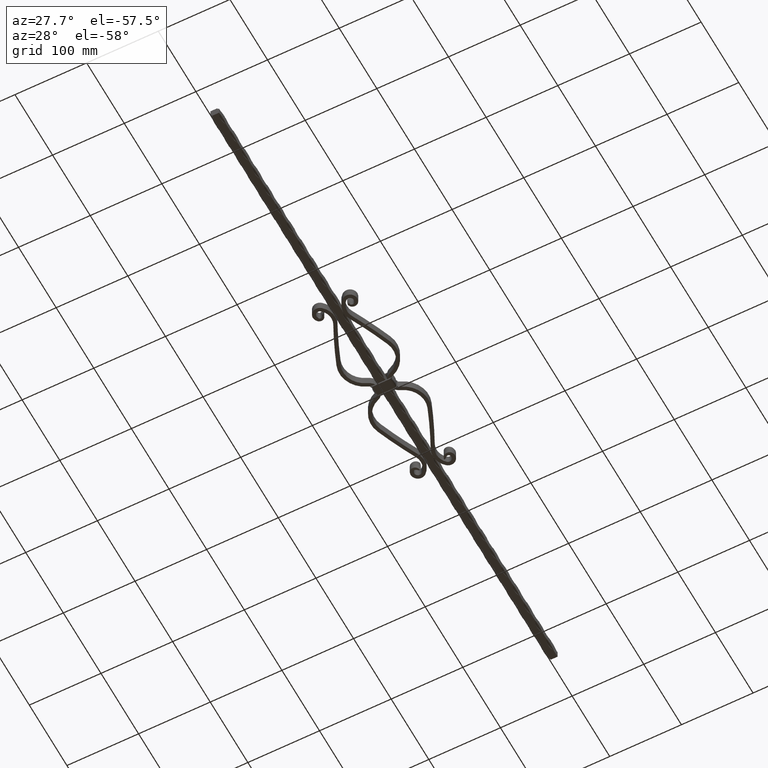
[diagram: clean part render]
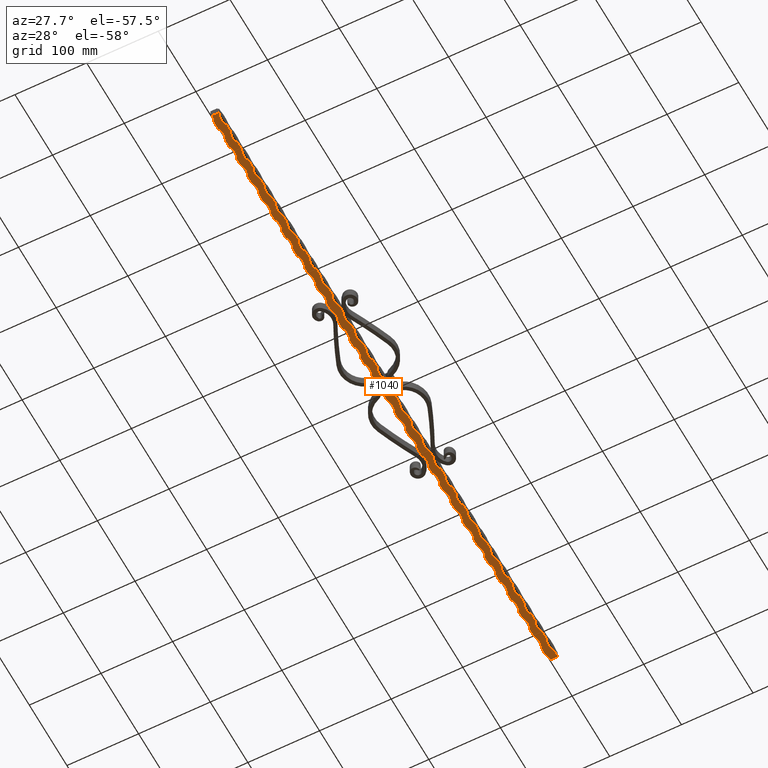
[diagram: same view with one face highlighted and labeled with its STEP entity id]
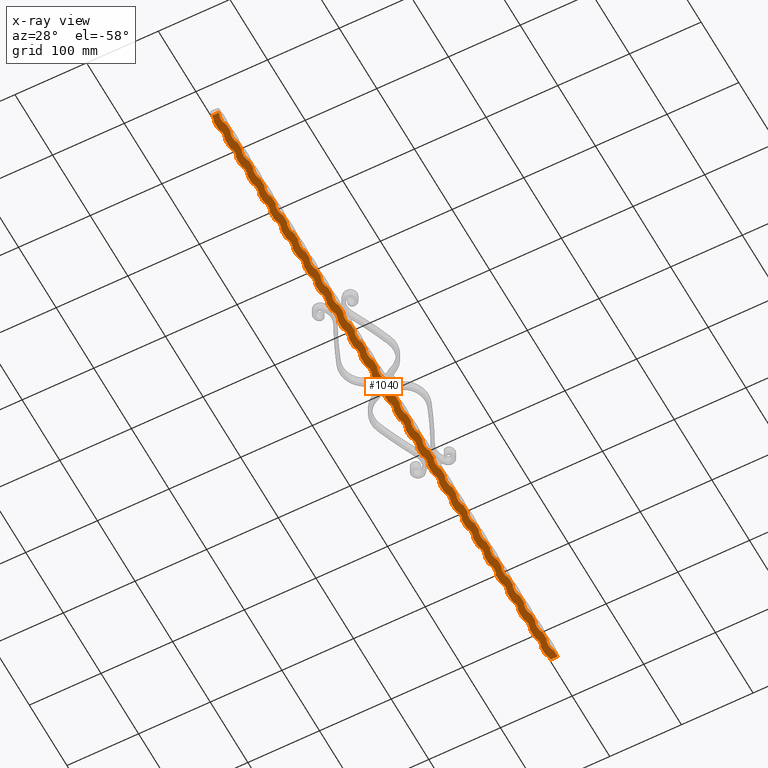
[diagram: x-ray of the same camera — body ghosted, the highlighted face saturated]
A machine part, auxiliary view. The second image highlights one B-rep face of the part: STEP entity #1040.
The next image is the same camera in x-ray: the body ghosted, the highlighted face saturated — about 0% of this face is hidden behind the body in this view.
In plain terms, the highlighted planar face has unit normal (0, 0, 1).
Its self-contained STEP definition (entity closure, byte-faithful):
#81 = CARTESIAN_POINT ( 'NONE',  ( -24.75000000000002132, -300.0000000000000000, -6.000000000000002665 ) ) ;
#83 = EDGE_CURVE ( 'NONE', #11005, #17575, #21603, .T. ) ;
#89 = CARTESIAN_POINT ( 'NONE',  ( -6.000000000000001776, 450.0000000000000000, -6.000000000000000888 ) ) ;
#92 = EDGE_CURVE ( 'NONE', #14533, #18231, #21077, .T. ) ;
#117 = CARTESIAN_POINT ( 'NONE',  ( -6.000000000000001776, 450.0000000000000000, -6.000000000000000888 ) ) ;
#165 = CARTESIAN_POINT ( 'NONE',  ( -5.999999999999997335, 10.00000000000000888, -6.000000000000002665 ) ) ;
#188 = DIRECTION ( 'NONE',  ( 1.000000000000000000, 0.000000000000000000, 0.000000000000000000 ) ) ;
#196 = VERTEX_POINT ( 'NONE', #3457 ) ;
#225 = CARTESIAN_POINT ( 'NONE',  ( -6.000000000000001776, 450.0000000000000000, -6.000000000000000888 ) ) ;
#232 = CARTESIAN_POINT ( 'NONE',  ( -24.75000000000002132, 329.9999999999999432, -6.000000000000002665 ) ) ;
#252 = CARTESIAN_POINT ( 'NONE',  ( 5.999999999999998224, -210.0000000000000284, -6.000000000000000000 ) ) ;
#253 = EDGE_CURVE ( 'NONE', #5538, #13106, #10742, .T. ) ;
#258 = LINE ( 'NONE', #9389, #21722 ) ;
#267 = ORIENTED_EDGE ( 'NONE', *, *, #11097, .T. ) ;
#273 = CARTESIAN_POINT ( 'NONE',  ( -5.999999999999997335, -430.0000000000000000, -6.000000000000001776 ) ) ;
#294 = CARTESIAN_POINT ( 'NONE',  ( -24.75000000000002132, 90.00000000000002842, -6.000000000000002665 ) ) ;
#305 = ORIENTED_EDGE ( 'NONE', *, *, #3227, .F. ) ;
#309 = VECTOR ( 'NONE', #19210, 1000.000000000000000 ) ;
#341 = EDGE_CURVE ( 'NONE', #15206, #15015, #12379, .T. ) ;
#357 = DIRECTION ( 'NONE',  ( -0.000000000000000000, -0.000000000000000000, -1.000000000000000000 ) ) ;
#388 = ORIENTED_EDGE ( 'NONE', *, *, #15789, .T. ) ;
#391 = CARTESIAN_POINT ( 'NONE',  ( 24.75000000000002132, -139.9999999999999716, -6.000000000000000000 ) ) ;
#441 = CARTESIAN_POINT ( 'NONE',  ( -5.999999999999997335, -340.0000000000000000, -6.000000000000001776 ) ) ;
#473 = DIRECTION ( 'NONE',  ( -0.000000000000000000, -0.000000000000000000, -1.000000000000000000 ) ) ;
#513 = ORIENTED_EDGE ( 'NONE', *, *, #15082, .F. ) ;
#524 = VERTEX_POINT ( 'NONE', #19792 ) ;
#525 = EDGE_CURVE ( 'NONE', #10284, #22045, #10458, .T. ) ;
#526 = LINE ( 'NONE', #19220, #12786 ) ;
#533 = EDGE_CURVE ( 'NONE', #10182, #15340, #13460, .T. ) ;
#539 = DIRECTION ( 'NONE',  ( -0.000000000000000000, -1.000000000000000000, -0.000000000000000000 ) ) ;
#544 = EDGE_CURVE ( 'NONE', #11935, #16720, #19158, .T. ) ;
#557 = CARTESIAN_POINT ( 'NONE',  ( 5.999999999999998224, 329.9999999999999432, -6.000000000000000000 ) ) ;
#565 = LINE ( 'NONE', #2809, #9010 ) ;
#580 = ORIENTED_EDGE ( 'NONE', *, *, #20557, .F. ) ;
#595 = AXIS2_PLACEMENT_3D ( 'NONE', #16861, #14717, #18152 ) ;
#602 = CARTESIAN_POINT ( 'NONE',  ( -24.75000000000002132, -269.9999999999999432, -6.000000000000002665 ) ) ;
#625 = VECTOR ( 'NONE', #7264, 1000.000000000000000 ) ;
#659 = CARTESIAN_POINT ( 'NONE',  ( 5.999999999999997335, 450.0000000000000000, -6.000000000000000888 ) ) ;
#695 = VECTOR ( 'NONE', #18893, 1000.000000000000000 ) ;
#700 = VERTEX_POINT ( 'NONE', #13298 ) ;
#729 = CARTESIAN_POINT ( 'NONE',  ( -6.000000000000001776, 450.0000000000000000, -6.000000000000000888 ) ) ;
#744 = DIRECTION ( 'NONE',  ( -0.000000000000000000, -1.000000000000000000, -0.000000000000000000 ) ) ;
#782 = AXIS2_PLACEMENT_3D ( 'NONE', #4597, #3395, #22494 ) ;
#798 = CARTESIAN_POINT ( 'NONE',  ( 24.75000000000002132, 400.0000000000000000, -6.000000000000000000 ) ) ;
#829 = DIRECTION ( 'NONE',  ( 1.000000000000000000, 0.000000000000000000, 0.000000000000000000 ) ) ;
#845 = CARTESIAN_POINT ( 'NONE',  ( 24.75000000000002132, -410.0000000000000000, -6.000000000000000000 ) ) ;
#863 = VERTEX_POINT ( 'NONE', #20153 ) ;
#871 = CARTESIAN_POINT ( 'NONE',  ( -5.999999999999997335, -290.0000000000000000, -6.000000000000002665 ) ) ;
#884 = DIRECTION ( 'NONE',  ( -0.000000000000000000, -1.000000000000000000, -0.000000000000000000 ) ) ;
#902 = CIRCLE ( 'NONE', #17051, 21.25000000000002487 ) ;
#903 = EDGE_CURVE ( 'NONE', #2480, #14236, #3960, .T. ) ;
#932 = VERTEX_POINT ( 'NONE', #10348 ) ;
#944 = VECTOR ( 'NONE', #1661, 1000.000000000000000 ) ;
#989 = VERTEX_POINT ( 'NONE', #14009 ) ;
#1009 = ORIENTED_EDGE ( 'NONE', *, *, #13386, .F. ) ;
#1011 = ORIENTED_EDGE ( 'NONE', *, *, #2252, .T. ) ;
#1040 = ADVANCED_FACE ( 'NONE', ( #1566 ), #3772, .F. ) ;
#1054 = CARTESIAN_POINT ( 'NONE',  ( -5.999999999999997335, -410.0000000000000000, -6.000000000000002665 ) ) ;
#1094 = CARTESIAN_POINT ( 'NONE',  ( -5.999999999999997335, -200.0000000000000000, -6.000000000000002665 ) ) ;
#1140 = CARTESIAN_POINT ( 'NONE',  ( 5.999999999999997335, 450.0000000000000000, -6.000000000000000888 ) ) ;
#1141 = ORIENTED_EDGE ( 'NONE', *, *, #19612, .F. ) ;
#1142 = VERTEX_POINT ( 'NONE', #16190 ) ;
#1156 = DIRECTION ( 'NONE',  ( -0.000000000000000000, -1.000000000000000000, -0.000000000000000000 ) ) ;
#1163 = EDGE_CURVE ( 'NONE', #2715, #22270, #4229, .T. ) ;
#1208 = VERTEX_POINT ( 'NONE', #11276 ) ;
#1255 = CIRCLE ( 'NONE', #6673, 21.25000000000002487 ) ;
#1268 = DIRECTION ( 'NONE',  ( -0.000000000000000000, -0.000000000000000000, -1.000000000000000000 ) ) ;
#1272 = CARTESIAN_POINT ( 'NONE',  ( 5.999999999999998224, -60.00000000000000000, -6.000000000000000000 ) ) ;
#1328 = CARTESIAN_POINT ( 'NONE',  ( -5.999999999999997335, 260.0000000000000000, -6.000000000000001776 ) ) ;
#1370 = VECTOR ( 'NONE', #8931, 1000.000000000000000 ) ;
#1380 = DIRECTION ( 'NONE',  ( -0.000000000000000000, -0.000000000000000000, -1.000000000000000000 ) ) ;
#1434 = DIRECTION ( 'NONE',  ( 0.000000000000000000, 0.000000000000000000, 1.000000000000000000 ) ) ;
#1444 = AXIS2_PLACEMENT_3D ( 'NONE', #3345, #3126, #6615 ) ;
#1459 = CARTESIAN_POINT ( 'NONE',  ( 5.999999999999997335, -190.0000000000000000, -6.000000000000001776 ) ) ;
#1462 = DIRECTION ( 'NONE',  ( -0.000000000000000000, -1.000000000000000000, -0.000000000000000000 ) ) ;
#1508 = LINE ( 'NONE', #659, #2857 ) ;
#1537 = CARTESIAN_POINT ( 'NONE',  ( 5.999999999999997335, 450.0000000000000000, -6.000000000000000888 ) ) ;
#1539 = CARTESIAN_POINT ( 'NONE',  ( 24.75000000000002132, -350.0000000000000568, -6.000000000000000000 ) ) ;
#1546 = CARTESIAN_POINT ( 'NONE',  ( -24.75000000000002132, 449.9999999999999432, -6.000000000000002665 ) ) ;
#1547 = EDGE_CURVE ( 'NONE', #5609, #11781, #11041, .T. ) ;
#1557 = EDGE_CURVE ( 'NONE', #22297, #7982, #14314, .T. ) ;
#1559 = DIRECTION ( 'NONE',  ( 1.000000000000000000, 0.000000000000000000, 0.000000000000000000 ) ) ;
#1566 = FACE_OUTER_BOUND ( 'NONE', #5640, .T. ) ;
#1576 = CARTESIAN_POINT ( 'NONE',  ( 5.999999999999997335, 450.0000000000000000, -6.000000000000000888 ) ) ;
#1627 = DIRECTION ( 'NONE',  ( 1.000000000000000000, 0.000000000000000000, 0.000000000000000000 ) ) ;
#1634 = LINE ( 'NONE', #18910, #19570 ) ;
#1661 = DIRECTION ( 'NONE',  ( -0.000000000000000000, -1.000000000000000000, -0.000000000000000000 ) ) ;
#1678 = DIRECTION ( 'NONE',  ( -0.000000000000000000, -1.000000000000000000, -0.000000000000000000 ) ) ;
#1726 = CARTESIAN_POINT ( 'NONE',  ( 5.999999999999997335, 230.0000000000000000, -6.000000000000001776 ) ) ;
#1727 = LINE ( 'NONE', #7642, #10959 ) ;
#1746 = DIRECTION ( 'NONE',  ( -0.000000000000000000, -1.000000000000000000, -0.000000000000000000 ) ) ;
#1779 = ORIENTED_EDGE ( 'NONE', *, *, #7441, .T. ) ;
#1790 = LINE ( 'NONE', #1576, #10210 ) ;
#1829 = EDGE_CURVE ( 'NONE', #932, #12142, #2069, .T. ) ;
#1834 = CARTESIAN_POINT ( 'NONE',  ( -5.999999999999997335, 370.0000000000000000, -6.000000000000002665 ) ) ;
#1845 = ORIENTED_EDGE ( 'NONE', *, *, #17416, .T. ) ;
#1857 = ORIENTED_EDGE ( 'NONE', *, *, #18962, .F. ) ;
#1869 = DIRECTION ( 'NONE',  ( -0.000000000000000000, -0.000000000000000000, -1.000000000000000000 ) ) ;
#1887 = ORIENTED_EDGE ( 'NONE', *, *, #10823, .T. ) ;
#1964 = ORIENTED_EDGE ( 'NONE', *, *, #8070, .T. ) ;
#1965 = VERTEX_POINT ( 'NONE', #1094 ) ;
#1992 = CARTESIAN_POINT ( 'NONE',  ( -6.000000000000001776, 450.0000000000000000, -6.000000000000000888 ) ) ;
#2000 = LINE ( 'NONE', #7179, #625 ) ;
#2006 = CARTESIAN_POINT ( 'NONE',  ( 5.999999999999998224, 360.0000000000000000, -6.000000000000000000 ) ) ;
#2019 = CIRCLE ( 'NONE', #4888, 21.25000000000002487 ) ;
#2025 = VECTOR ( 'NONE', #21565, 1000.000000000000000 ) ;
#2047 = DIRECTION ( 'NONE',  ( 1.000000000000000000, 0.000000000000000000, -0.000000000000000000 ) ) ;
#2053 = CARTESIAN_POINT ( 'NONE',  ( -5.999999999999997335, -220.0000000000000284, -6.000000000000001776 ) ) ;
#2069 = CIRCLE ( 'NONE', #20675, 21.25000000000002487 ) ;
#2070 = CARTESIAN_POINT ( 'NONE',  ( 5.999999999999997335, 450.0000000000000000, -6.000000000000000888 ) ) ;
#2074 = ORIENTED_EDGE ( 'NONE', *, *, #12321, .T. ) ;
#2146 = CARTESIAN_POINT ( 'NONE',  ( -24.75000000000002132, -60.00000000000000000, -6.000000000000002665 ) ) ;
#2195 = DIRECTION ( 'NONE',  ( 1.000000000000000000, 0.000000000000000000, 0.000000000000000000 ) ) ;
#2228 = CIRCLE ( 'NONE', #2900, 21.25000000000002487 ) ;
#2252 = EDGE_CURVE ( 'NONE', #11855, #11935, #1255, .T. ) ;
#2276 = ORIENTED_EDGE ( 'NONE', *, *, #4081, .F. ) ;
#2285 = ORIENTED_EDGE ( 'NONE', *, *, #1163, .T. ) ;
#2303 = CIRCLE ( 'NONE', #782, 21.25000000000002487 ) ;
#2349 = VECTOR ( 'NONE', #16705, 1000.000000000000000 ) ;
#2388 = EDGE_CURVE ( 'NONE', #15954, #19648, #14832, .T. ) ;
#2391 = DIRECTION ( 'NONE',  ( -0.000000000000000000, -1.000000000000000000, -0.000000000000000000 ) ) ;
#2451 = DIRECTION ( 'NONE',  ( -0.000000000000000000, -1.000000000000000000, -0.000000000000000000 ) ) ;
#2468 = VECTOR ( 'NONE', #1156, 1000.000000000000000 ) ;
#2477 = EDGE_CURVE ( 'NONE', #863, #18246, #8293, .T. ) ;
#2480 = VERTEX_POINT ( 'NONE', #17808 ) ;
#2550 = DIRECTION ( 'NONE',  ( 0.000000000000000000, 0.000000000000000000, 1.000000000000000000 ) ) ;
#2558 = VECTOR ( 'NONE', #19114, 1000.000000000000000 ) ;
#2561 = DIRECTION ( 'NONE',  ( -1.000000000000000000, -0.000000000000000000, -0.000000000000000000 ) ) ;
#2606 = DIRECTION ( 'NONE',  ( 0.000000000000000000, 0.000000000000000000, 1.000000000000000000 ) ) ;
#2608 = CARTESIAN_POINT ( 'NONE',  ( 5.999999999999997335, -249.9999999999999432, -6.000000000000001776 ) ) ;
#2667 = DIRECTION ( 'NONE',  ( 0.000000000000000000, 0.000000000000000000, 1.000000000000000000 ) ) ;
#2670 = DIRECTION ( 'NONE',  ( 0.000000000000000000, 0.000000000000000000, 1.000000000000000000 ) ) ;
#2698 = EDGE_CURVE ( 'NONE', #21898, #4158, #18637, .T. ) ;
#2712 = DIRECTION ( 'NONE',  ( 0.000000000000000000, 0.000000000000000000, 1.000000000000000000 ) ) ;
#2714 = DIRECTION ( 'NONE',  ( -1.000000000000000000, -0.000000000000000000, -0.000000000000000000 ) ) ;
#2715 = VERTEX_POINT ( 'NONE', #1459 ) ;
#2732 = ORIENTED_EDGE ( 'NONE', *, *, #19276, .F. ) ;
#2760 = CARTESIAN_POINT ( 'NONE',  ( -24.75000000000002132, -29.99999999999997158, -6.000000000000002665 ) ) ;
#2781 = AXIS2_PLACEMENT_3D ( 'NONE', #798, #16458, #5710 ) ;
#2787 = ORIENTED_EDGE ( 'NONE', *, *, #11434, .F. ) ;
#2798 = CIRCLE ( 'NONE', #9566, 21.25000000000002487 ) ;
#2809 = CARTESIAN_POINT ( 'NONE',  ( 5.999999999999997335, 450.0000000000000000, -6.000000000000000888 ) ) ;
#2857 = VECTOR ( 'NONE', #744, 1000.000000000000000 ) ;
#2873 = CARTESIAN_POINT ( 'NONE',  ( -24.75000000000002132, -90.00000000000002842, -6.000000000000002665 ) ) ;
#2878 = CIRCLE ( 'NONE', #8495, 21.25000000000002487 ) ;
#2900 = AXIS2_PLACEMENT_3D ( 'NONE', #232, #19526, #5586 ) ;
#3020 = ORIENTED_EDGE ( 'NONE', *, *, #8364, .T. ) ;
#3046 = VECTOR ( 'NONE', #22460, 1000.000000000000000 ) ;
#3055 = ORIENTED_EDGE ( 'NONE', *, *, #19466, .F. ) ;
#3056 = CARTESIAN_POINT ( 'NONE',  ( 5.999999999999997335, 450.0000000000000000, -6.000000000000000888 ) ) ;
#3060 = ORIENTED_EDGE ( 'NONE', *, *, #3448, .T. ) ;
#3077 = ORIENTED_EDGE ( 'NONE', *, *, #21204, .T. ) ;
#3126 = DIRECTION ( 'NONE',  ( -0.000000000000000000, -0.000000000000000000, -1.000000000000000000 ) ) ;
#3130 = CARTESIAN_POINT ( 'NONE',  ( 5.999999999999998224, -90.00000000000002842, -6.000000000000000000 ) ) ;
#3137 = ORIENTED_EDGE ( 'NONE', *, *, #15682, .T. ) ;
#3203 = CARTESIAN_POINT ( 'NONE',  ( 24.75000000000002132, 430.0000000000000000, -6.000000000000000000 ) ) ;
#3212 = CARTESIAN_POINT ( 'NONE',  ( 5.999999999999997335, 450.0000000000000000, -6.000000000000000888 ) ) ;
#3227 = EDGE_CURVE ( 'NONE', #16988, #17781, #22422, .T. ) ;
#3238 = DIRECTION ( 'NONE',  ( -0.000000000000000000, -1.000000000000000000, -0.000000000000000000 ) ) ;
#3255 = EDGE_CURVE ( 'NONE', #3831, #196, #12906, .T. ) ;
#3300 = AXIS2_PLACEMENT_3D ( 'NONE', #1546, #1380, #6842 ) ;
#3315 = ORIENTED_EDGE ( 'NONE', *, *, #13312, .T. ) ;
#3319 = CARTESIAN_POINT ( 'NONE',  ( 5.999999999999998224, 300.0000000000000000, -6.000000000000000000 ) ) ;
#3325 = VECTOR ( 'NONE', #7454, 1000.000000000000000 ) ;
#3345 = CARTESIAN_POINT ( 'NONE',  ( -24.75000000000002132, -239.9999999999999432, -6.000000000000002665 ) ) ;
#3380 = CARTESIAN_POINT ( 'NONE',  ( -5.999999999999997335, -440.0000000000000000, -6.000000000000002665 ) ) ;
#3395 = DIRECTION ( 'NONE',  ( -0.000000000000000000, -0.000000000000000000, -1.000000000000000000 ) ) ;
#3419 = VERTEX_POINT ( 'NONE', #22004 ) ;
#3448 = EDGE_CURVE ( 'NONE', #10220, #9101, #902, .T. ) ;
#3457 = CARTESIAN_POINT ( 'NONE',  ( 5.999999999999997335, 80.00000000000001421, -6.000000000000001776 ) ) ;
#3548 = DIRECTION ( 'NONE',  ( -0.000000000000000000, -0.000000000000000000, -1.000000000000000000 ) ) ;
#3568 = ORIENTED_EDGE ( 'NONE', *, *, #9265, .T. ) ;
#3643 = VECTOR ( 'NONE', #17466, 1000.000000000000000 ) ;
#3671 = DIRECTION ( 'NONE',  ( 0.000000000000000000, 0.000000000000000000, 1.000000000000000000 ) ) ;
#3701 = EDGE_CURVE ( 'NONE', #13122, #22104, #2000, .T. ) ;
#3730 = CARTESIAN_POINT ( 'NONE',  ( -5.999999999999997335, -249.9999999999999432, -6.000000000000001776 ) ) ;
#3736 = CARTESIAN_POINT ( 'NONE',  ( 24.75000000000002132, -320.0000000000000000, -6.000000000000000000 ) ) ;
#3772 = PLANE ( 'NONE',  #10318 ) ;
#3789 = ORIENTED_EDGE ( 'NONE', *, *, #5921, .F. ) ;
#3831 = VERTEX_POINT ( 'NONE', #19719 ) ;
#3848 = CARTESIAN_POINT ( 'NONE',  ( -24.75000000000002132, 149.9999999999999716, -6.000000000000002665 ) ) ;
#3850 = VERTEX_POINT ( 'NONE', #10910 ) ;
#3860 = DIRECTION ( 'NONE',  ( 1.000000000000000000, 0.000000000000000000, 0.000000000000000000 ) ) ;
#3870 = ORIENTED_EDGE ( 'NONE', *, *, #12088, .F. ) ;
#3888 = CARTESIAN_POINT ( 'NONE',  ( 5.999999999999997335, 450.0000000000000000, -6.000000000000000888 ) ) ;
#3920 = EDGE_CURVE ( 'NONE', #22104, #17236, #19665, .T. ) ;
#3930 = VECTOR ( 'NONE', #539, 1000.000000000000000 ) ;
#3948 = DIRECTION ( 'NONE',  ( -0.000000000000000000, -1.000000000000000000, -0.000000000000000000 ) ) ;
#3957 = VERTEX_POINT ( 'NONE', #2608 ) ;
#3960 = CIRCLE ( 'NONE', #3300, 21.25000000000002487 ) ;
#4011 = CIRCLE ( 'NONE', #7598, 21.25000000000002487 ) ;
#4031 = AXIS2_PLACEMENT_3D ( 'NONE', #11937, #22084, #22254 ) ;
#4036 = DIRECTION ( 'NONE',  ( -0.000000000000000000, -1.000000000000000000, -0.000000000000000000 ) ) ;
#4081 = EDGE_CURVE ( 'NONE', #14558, #17201, #7957, .T. ) ;
#4086 = DIRECTION ( 'NONE',  ( -0.000000000000000000, -1.000000000000000000, -0.000000000000000000 ) ) ;
#4111 = ORIENTED_EDGE ( 'NONE', *, *, #18468, .T. ) ;
#4142 = LINE ( 'NONE', #3212, #19394 ) ;
#4144 = CARTESIAN_POINT ( 'NONE',  ( -6.000000000000001776, -450.0000000000000000, -6.000000000000000888 ) ) ;
#4150 = DIRECTION ( 'NONE',  ( 1.000000000000000000, 0.000000000000000000, 0.000000000000000000 ) ) ;
#4158 = VERTEX_POINT ( 'NONE', #3730 ) ;
#4178 = EDGE_CURVE ( 'NONE', #16720, #5684, #8498, .T. ) ;
#4184 = CARTESIAN_POINT ( 'NONE',  ( 5.999999999999997335, 450.0000000000000000, -6.000000000000000888 ) ) ;
#4216 = VERTEX_POINT ( 'NONE', #12373 ) ;
#4229 = CIRCLE ( 'NONE', #9568, 21.25000000000002487 ) ;
#4237 = LINE ( 'NONE', #20929, #17852 ) ;
#4261 = DIRECTION ( 'NONE',  ( 0.000000000000000000, 0.000000000000000000, 1.000000000000000000 ) ) ;
#4268 = VERTEX_POINT ( 'NONE', #11272 ) ;
#4272 = EDGE_CURVE ( 'NONE', #7369, #17428, #18850, .T. ) ;
#4300 = CARTESIAN_POINT ( 'NONE',  ( -5.999999999999997335, -279.9999999999999432, -6.000000000000001776 ) ) ;
#4354 = CARTESIAN_POINT ( 'NONE',  ( -5.999999999999997335, -19.99999999999996092, -6.000000000000002665 ) ) ;
#4370 = DIRECTION ( 'NONE',  ( -0.000000000000000000, -1.000000000000000000, -0.000000000000000000 ) ) ;
#4382 = CIRCLE ( 'NONE', #21985, 21.25000000000002487 ) ;
#4390 = DIRECTION ( 'NONE',  ( 1.000000000000000000, 0.000000000000000000, 0.000000000000000000 ) ) ;
#4407 = EDGE_CURVE ( 'NONE', #22045, #11005, #4382, .T. ) ;
#4480 = ORIENTED_EDGE ( 'NONE', *, *, #13480, .T. ) ;
#4499 = VECTOR ( 'NONE', #11889, 1000.000000000000000 ) ;
#4511 = DIRECTION ( 'NONE',  ( 1.000000000000000000, 0.000000000000000000, 0.000000000000000000 ) ) ;
#4520 = LINE ( 'NONE', #3056, #15720 ) ;
#4553 = CARTESIAN_POINT ( 'NONE',  ( -5.999999999999997335, 70.00000000000000000, -6.000000000000002665 ) ) ;
#4573 = EDGE_CURVE ( 'NONE', #18609, #6344, #2228, .T. ) ;
#4597 = CARTESIAN_POINT ( 'NONE',  ( -24.75000000000002132, -210.0000000000000284, -6.000000000000002665 ) ) ;
#4604 = LINE ( 'NONE', #729, #8979 ) ;
#4629 = CARTESIAN_POINT ( 'NONE',  ( 24.75000000000002132, 220.0000000000000000, -6.000000000000000000 ) ) ;
#4690 = VERTEX_POINT ( 'NONE', #9324 ) ;
#4693 = DIRECTION ( 'NONE',  ( 1.000000000000000000, 0.000000000000000000, 0.000000000000000000 ) ) ;
#4710 = DIRECTION ( 'NONE',  ( 0.000000000000000000, 0.000000000000000000, 1.000000000000000000 ) ) ;
#4808 = CARTESIAN_POINT ( 'NONE',  ( -5.999999999999997335, 19.99999999999996092, -6.000000000000001776 ) ) ;
#4869 = CARTESIAN_POINT ( 'NONE',  ( -5.999999999999997335, 80.00000000000001421, -6.000000000000001776 ) ) ;
#4871 = CARTESIAN_POINT ( 'NONE',  ( -24.75000000000002132, 270.0000000000000000, -6.000000000000002665 ) ) ;
#4888 = AXIS2_PLACEMENT_3D ( 'NONE', #22265, #1434, #13613 ) ;
#4900 = CARTESIAN_POINT ( 'NONE',  ( 5.999999999999997335, 450.0000000000000000, -6.000000000000000888 ) ) ;
#4925 = DIRECTION ( 'NONE',  ( -0.000000000000000000, -0.000000000000000000, -1.000000000000000000 ) ) ;
#4936 = LINE ( 'NONE', #6641, #3046 ) ;
#4946 = AXIS2_PLACEMENT_3D ( 'NONE', #14702, #4261, #16372 ) ;
#4951 = CARTESIAN_POINT ( 'NONE',  ( 5.999999999999998224, 120.0000000000000000, -6.000000000000000000 ) ) ;
#4970 = CARTESIAN_POINT ( 'NONE',  ( 24.75000000000002132, 70.00000000000000000, -6.000000000000000000 ) ) ;
#5009 = VERTEX_POINT ( 'NONE', #15724 ) ;
#5014 = LINE ( 'NONE', #18300, #944 ) ;
#5093 = DIRECTION ( 'NONE',  ( 1.000000000000000000, 0.000000000000000000, 0.000000000000000000 ) ) ;
#5130 = ORIENTED_EDGE ( 'NONE', *, *, #11587, .F. ) ;
#5240 = EDGE_CURVE ( 'NONE', #8339, #11860, #15573, .T. ) ;
#5250 = VERTEX_POINT ( 'NONE', #4553 ) ;
#5258 = CARTESIAN_POINT ( 'NONE',  ( 5.999999999999997335, -159.9999999999999716, -6.000000000000001776 ) ) ;
#5279 = EDGE_CURVE ( 'NONE', #15340, #16216, #10927, .T. ) ;
#5300 = VERTEX_POINT ( 'NONE', #20330 ) ;
#5309 = VECTOR ( 'NONE', #17809, 1000.000000000000000 ) ;
#5331 = DIRECTION ( 'NONE',  ( 1.000000000000000000, 0.000000000000000000, 0.000000000000000000 ) ) ;
#5362 = LINE ( 'NONE', #1140, #18444 ) ;
#5399 = AXIS2_PLACEMENT_3D ( 'NONE', #9654, #14685, #9447 ) ;
#5434 = EDGE_CURVE ( 'NONE', #5300, #22297, #14724, .T. ) ;
#5460 = DIRECTION ( 'NONE',  ( -0.000000000000000000, -0.000000000000000000, -1.000000000000000000 ) ) ;
#5470 = ORIENTED_EDGE ( 'NONE', *, *, #544, .T. ) ;
#5485 = DIRECTION ( 'NONE',  ( 1.000000000000000000, 0.000000000000000000, 0.000000000000000000 ) ) ;
#5496 = EDGE_CURVE ( 'NONE', #11765, #4216, #9310, .T. ) ;
#5516 = ORIENTED_EDGE ( 'NONE', *, *, #16509, .F. ) ;
#5532 = DIRECTION ( 'NONE',  ( 0.000000000000000000, 0.000000000000000000, 1.000000000000000000 ) ) ;
#5538 = VERTEX_POINT ( 'NONE', #8724 ) ;
#5539 = VERTEX_POINT ( 'NONE', #10339 ) ;
#5545 = ORIENTED_EDGE ( 'NONE', *, *, #1557, .F. ) ;
#5586 = DIRECTION ( 'NONE',  ( 1.000000000000000000, 0.000000000000000000, 0.000000000000000000 ) ) ;
#5608 = CARTESIAN_POINT ( 'NONE',  ( -5.999999999999997335, -100.0000000000000284, -6.000000000000001776 ) ) ;
#5609 = VERTEX_POINT ( 'NONE', #19877 ) ;
#5637 = CARTESIAN_POINT ( 'NONE',  ( 5.999999999999997335, -100.0000000000000284, -6.000000000000001776 ) ) ;
#5640 = EDGE_LOOP ( 'NONE', ( #2787, #15618, #5989, #16500, #16991, #5545, #6058, #3789, #5694, #8402, #1857, #8799, #10232, #22492, #16889, #9297, #1141, #17739, #18626, #13674, #13931, #14863, #10681, #1009, #9195, #513, #2276, #16203, #14660, #21998, #13226, #22054, #5516, #5130, #6661, #6347, #16180, #6833, #5853, #8058, #7176, #19802, #2732, #7136, #19025, #12111, #9642, #10247, #3870, #12175, #580, #6122, #11039, #8823, #16688, #305, #10514, #16086, #15279, #3055, #20002, #21323, #13700, #17174, #21355, #21464, #2074, #20562, #21583, #267, #19146, #20345, #1887, #8818, #20588, #3568, #7803, #6997, #1964, #19977, #7709, #15228, #3077, #21275, #15765, #21403, #18016, #7827, #15444, #21081, #3315, #7220, #3020, #16004, #6147, #19460, #12256, #19187, #7202, #1011, #5470, #16974, #9388, #10679, #388, #2285, #12017, #9575, #12974, #21387, #13191, #1845, #11624, #4480, #5956, #3137, #9408, #15857, #4111, #17036, #1779, #3060, #6847 ) ) ;
#5684 = VERTEX_POINT ( 'NONE', #14569 ) ;
#5692 = EDGE_CURVE ( 'NONE', #524, #16988, #6551, .T. ) ;
#5694 = ORIENTED_EDGE ( 'NONE', *, *, #5897, .F. ) ;
#5710 = DIRECTION ( 'NONE',  ( 1.000000000000000000, 0.000000000000000000, 0.000000000000000000 ) ) ;
#5719 = AXIS2_PLACEMENT_3D ( 'NONE', #10352, #12270, #17489 ) ;
#5746 = AXIS2_PLACEMENT_3D ( 'NONE', #3736, #17664, #19405 ) ;
#5843 = DIRECTION ( 'NONE',  ( 0.000000000000000000, 0.000000000000000000, 1.000000000000000000 ) ) ;
#5853 = ORIENTED_EDGE ( 'NONE', *, *, #4407, .F. ) ;
#5897 = EDGE_CURVE ( 'NONE', #9089, #17881, #19739, .T. ) ;
#5921 = EDGE_CURVE ( 'NONE', #17881, #5300, #4936, .T. ) ;
#5954 = DIRECTION ( 'NONE',  ( -0.000000000000000000, -1.000000000000000000, -0.000000000000000000 ) ) ;
#5956 = ORIENTED_EDGE ( 'NONE', *, *, #17625, .T. ) ;
#5982 = CARTESIAN_POINT ( 'NONE',  ( 24.75000000000002132, 339.9999999999999432, -6.000000000000000000 ) ) ;
#5988 = DIRECTION ( 'NONE',  ( 1.000000000000000000, 0.000000000000000000, 0.000000000000000000 ) ) ;
#5989 = ORIENTED_EDGE ( 'NONE', *, *, #20512, .F. ) ;
#6035 = CARTESIAN_POINT ( 'NONE',  ( -5.999999999999997335, -190.0000000000000000, -6.000000000000001776 ) ) ;
#6058 = ORIENTED_EDGE ( 'NONE', *, *, #5434, .F. ) ;
#6073 = CARTESIAN_POINT ( 'NONE',  ( -6.000000000000001776, 450.0000000000000000, -6.000000000000000888 ) ) ;
#6118 = VECTOR ( 'NONE', #22170, 1000.000000000000000 ) ;
#6122 = ORIENTED_EDGE ( 'NONE', *, *, #16677, .F. ) ;
#6134 = LINE ( 'NONE', #9353, #11352 ) ;
#6147 = ORIENTED_EDGE ( 'NONE', *, *, #341, .T. ) ;
#6188 = CARTESIAN_POINT ( 'NONE',  ( 24.75000000000002132, -110.0000000000000426, -6.000000000000000000 ) ) ;
#6228 = CARTESIAN_POINT ( 'NONE',  ( -5.999999999999997335, -320.0000000000000000, -6.000000000000002665 ) ) ;
#6249 = DIRECTION ( 'NONE',  ( 1.000000000000000000, 0.000000000000000000, 0.000000000000000000 ) ) ;
#6274 = CARTESIAN_POINT ( 'NONE',  ( 5.999999999999997335, -310.0000000000000000, -6.000000000000001776 ) ) ;
#6275 = VERTEX_POINT ( 'NONE', #22126 ) ;
#6294 = CARTESIAN_POINT ( 'NONE',  ( -5.999999999999997335, 139.9999999999999716, -6.000000000000001776 ) ) ;
#6301 = VERTEX_POINT ( 'NONE', #15071 ) ;
#6344 = VERTEX_POINT ( 'NONE', #19162 ) ;
#6347 = ORIENTED_EDGE ( 'NONE', *, *, #19171, .F. ) ;
#6396 = VERTEX_POINT ( 'NONE', #8971 ) ;
#6444 = DIRECTION ( 'NONE',  ( 1.000000000000000000, 0.000000000000000000, 0.000000000000000000 ) ) ;
#6456 = AXIS2_PLACEMENT_3D ( 'NONE', #5982, #5843, #11354 ) ;
#6496 = CIRCLE ( 'NONE', #20859, 21.25000000000002487 ) ;
#6525 = CARTESIAN_POINT ( 'NONE',  ( -24.75000000000002132, 120.0000000000000000, -6.000000000000002665 ) ) ;
#6551 = CIRCLE ( 'NONE', #8642, 21.25000000000002487 ) ;
#6615 = DIRECTION ( 'NONE',  ( 1.000000000000000000, 0.000000000000000000, 0.000000000000000000 ) ) ;
#6618 = DIRECTION ( 'NONE',  ( -0.000000000000000000, -1.000000000000000000, -0.000000000000000000 ) ) ;
#6620 = EDGE_CURVE ( 'NONE', #11032, #16066, #8203, .T. ) ;
#6641 = CARTESIAN_POINT ( 'NONE',  ( -6.000000000000001776, 450.0000000000000000, -6.000000000000000888 ) ) ;
#6661 = ORIENTED_EDGE ( 'NONE', *, *, #20602, .F. ) ;
#6673 = AXIS2_PLACEMENT_3D ( 'NONE', #6188, #9785, #18371 ) ;
#6703 = VERTEX_POINT ( 'NONE', #21333 ) ;
#6752 = DIRECTION ( 'NONE',  ( 1.000000000000000000, 0.000000000000000000, 0.000000000000000000 ) ) ;
#6765 = DIRECTION ( 'NONE',  ( -0.000000000000000000, -0.000000000000000000, -1.000000000000000000 ) ) ;
#6829 = CARTESIAN_POINT ( 'NONE',  ( -24.75000000000002132, 420.0000000000000000, -6.000000000000002665 ) ) ;
#6833 = ORIENTED_EDGE ( 'NONE', *, *, #83, .F. ) ;
#6840 = CARTESIAN_POINT ( 'NONE',  ( -6.000000000000001776, 450.0000000000000000, -6.000000000000000888 ) ) ;
#6842 = DIRECTION ( 'NONE',  ( 1.000000000000000000, 0.000000000000000000, 0.000000000000000000 ) ) ;
#6847 = ORIENTED_EDGE ( 'NONE', *, *, #14204, .T. ) ;
#6873 = EDGE_CURVE ( 'NONE', #15973, #14444, #12317, .T. ) ;
#6908 = EDGE_CURVE ( 'NONE', #6703, #15312, #21260, .T. ) ;
#6917 = CARTESIAN_POINT ( 'NONE',  ( 5.999999999999997335, 450.0000000000000000, -6.000000000000000888 ) ) ;
#6965 = CARTESIAN_POINT ( 'NONE',  ( 24.75000000000002132, -80.00000000000001421, -6.000000000000000000 ) ) ;
#6970 = VECTOR ( 'NONE', #10721, 1000.000000000000000 ) ;
#6997 = ORIENTED_EDGE ( 'NONE', *, *, #22050, .T. ) ;
#7022 = EDGE_CURVE ( 'NONE', #14293, #1208, #19072, .T. ) ;
#7035 = CARTESIAN_POINT ( 'NONE',  ( 5.999999999999997335, -279.9999999999999432, -6.000000000000001776 ) ) ;
#7069 = EDGE_CURVE ( 'NONE', #18836, #11757, #17177, .T. ) ;
#7136 = ORIENTED_EDGE ( 'NONE', *, *, #10109, .F. ) ;
#7176 = ORIENTED_EDGE ( 'NONE', *, *, #22268, .F. ) ;
#7179 = CARTESIAN_POINT ( 'NONE',  ( 5.999999999999997335, 450.0000000000000000, -6.000000000000000888 ) ) ;
#7202 = ORIENTED_EDGE ( 'NONE', *, *, #18583, .T. ) ;
#7220 = ORIENTED_EDGE ( 'NONE', *, *, #14371, .T. ) ;
#7228 = LINE ( 'NONE', #117, #16487 ) ;
#7264 = DIRECTION ( 'NONE',  ( -0.000000000000000000, -1.000000000000000000, -0.000000000000000000 ) ) ;
#7348 = EDGE_CURVE ( 'NONE', #14126, #21898, #13657, .T. ) ;
#7354 = VERTEX_POINT ( 'NONE', #9377 ) ;
#7360 = EDGE_CURVE ( 'NONE', #12142, #22496, #565, .T. ) ;
#7367 = VECTOR ( 'NONE', #8704, 1000.000000000000000 ) ;
#7369 = VERTEX_POINT ( 'NONE', #1328 ) ;
#7402 = DIRECTION ( 'NONE',  ( -0.000000000000000000, -1.000000000000000000, -0.000000000000000000 ) ) ;
#7441 = EDGE_CURVE ( 'NONE', #5009, #10220, #21760, .T. ) ;
#7454 = DIRECTION ( 'NONE',  ( -0.000000000000000000, -1.000000000000000000, -0.000000000000000000 ) ) ;
#7501 = VERTEX_POINT ( 'NONE', #4869 ) ;
#7506 = VERTEX_POINT ( 'NONE', #3130 ) ;
#7540 = VERTEX_POINT ( 'NONE', #15837 ) ;
#7581 = AXIS2_PLACEMENT_3D ( 'NONE', #1539, #22039, #4693 ) ;
#7598 = AXIS2_PLACEMENT_3D ( 'NONE', #20483, #15617, #1627 ) ;
#7634 = AXIS2_PLACEMENT_3D ( 'NONE', #15152, #18545, #16812 ) ;
#7642 = CARTESIAN_POINT ( 'NONE',  ( -6.000000000000001776, 450.0000000000000000, -6.000000000000000888 ) ) ;
#7709 = ORIENTED_EDGE ( 'NONE', *, *, #7360, .T. ) ;
#7714 = DIRECTION ( 'NONE',  ( -0.000000000000000000, -0.000000000000000000, -1.000000000000000000 ) ) ;
#7749 = CARTESIAN_POINT ( 'NONE',  ( 5.999999999999997335, -9.999999999999953815, -6.000000000000001776 ) ) ;
#7773 = VERTEX_POINT ( 'NONE', #4300 ) ;
#7803 = ORIENTED_EDGE ( 'NONE', *, *, #92, .T. ) ;
#7809 = EDGE_CURVE ( 'NONE', #11660, #17614, #18503, .T. ) ;
#7827 = ORIENTED_EDGE ( 'NONE', *, *, #8566, .T. ) ;
#7902 = AXIS2_PLACEMENT_3D ( 'NONE', #13854, #3548, #20979 ) ;
#7905 = CARTESIAN_POINT ( 'NONE',  ( -6.000000000000001776, 450.0000000000000000, -6.000000000000000888 ) ) ;
#7926 = CARTESIAN_POINT ( 'NONE',  ( 5.999999999999997335, -450.0000000000000000, -6.000000000000000888 ) ) ;
#7957 = CIRCLE ( 'NONE', #22423, 21.25000000000002487 ) ;
#7982 = VERTEX_POINT ( 'NONE', #12485 ) ;
#8046 = VECTOR ( 'NONE', #18549, 1000.000000000000000 ) ;
#8048 = AXIS2_PLACEMENT_3D ( 'NONE', #9884, #22035, #6444 ) ;
#8058 = ORIENTED_EDGE ( 'NONE', *, *, #525, .F. ) ;
#8070 = EDGE_CURVE ( 'NONE', #6275, #932, #19850, .T. ) ;
#8082 = AXIS2_PLACEMENT_3D ( 'NONE', #15533, #8517, #5093 ) ;
#8153 = DIRECTION ( 'NONE',  ( -0.000000000000000000, -1.000000000000000000, -0.000000000000000000 ) ) ;
#8154 = CARTESIAN_POINT ( 'NONE',  ( 5.999999999999997335, 49.99999999999998579, -6.000000000000001776 ) ) ;
#8168 = CARTESIAN_POINT ( 'NONE',  ( 5.999999999999998224, -29.99999999999997158, -6.000000000000000000 ) ) ;
#8190 = VERTEX_POINT ( 'NONE', #13293 ) ;
#8203 = LINE ( 'NONE', #12021, #12041 ) ;
#8207 = VERTEX_POINT ( 'NONE', #15191 ) ;
#8229 = CARTESIAN_POINT ( 'NONE',  ( 5.999999999999998224, 180.0000000000000000, -6.000000000000000000 ) ) ;
#8281 = EDGE_CURVE ( 'NONE', #7982, #15954, #17679, .T. ) ;
#8293 = LINE ( 'NONE', #15887, #3643 ) ;
#8309 = CIRCLE ( 'NONE', #5746, 21.25000000000002487 ) ;
#8339 = VERTEX_POINT ( 'NONE', #5258 ) ;
#8360 = EDGE_CURVE ( 'NONE', #22270, #6703, #10625, .T. ) ;
#8364 = EDGE_CURVE ( 'NONE', #20299, #20720, #22303, .T. ) ;
#8374 = EDGE_CURVE ( 'NONE', #4216, #524, #4604, .T. ) ;
#8384 = VERTEX_POINT ( 'NONE', #18051 ) ;
#8402 = ORIENTED_EDGE ( 'NONE', *, *, #16449, .F. ) ;
#8415 = CIRCLE ( 'NONE', #12283, 21.25000000000002487 ) ;
#8451 = EDGE_CURVE ( 'NONE', #12581, #7540, #17935, .T. ) ;
#8495 = AXIS2_PLACEMENT_3D ( 'NONE', #13009, #2550, #4511 ) ;
#8498 = CIRCLE ( 'NONE', #16168, 21.25000000000002487 ) ;
#8501 = VERTEX_POINT ( 'NONE', #18212 ) ;
#8515 = CIRCLE ( 'NONE', #18760, 21.25000000000002487 ) ;
#8517 = DIRECTION ( 'NONE',  ( -0.000000000000000000, -0.000000000000000000, -1.000000000000000000 ) ) ;
#8537 = EDGE_CURVE ( 'NONE', #16637, #18609, #1634, .T. ) ;
#8543 = DIRECTION ( 'NONE',  ( 1.000000000000000000, 0.000000000000000000, 0.000000000000000000 ) ) ;
#8566 = EDGE_CURVE ( 'NONE', #196, #13122, #22569, .T. ) ;
#8595 = DIRECTION ( 'NONE',  ( -0.000000000000000000, -0.000000000000000000, -1.000000000000000000 ) ) ;
#8628 = VERTEX_POINT ( 'NONE', #22174 ) ;
#8642 = AXIS2_PLACEMENT_3D ( 'NONE', #22071, #1268, #15019 ) ;
#8643 = LINE ( 'NONE', #7905, #17357 ) ;
#8684 = EDGE_CURVE ( 'NONE', #3850, #7506, #6496, .T. ) ;
#8704 = DIRECTION ( 'NONE',  ( -0.000000000000000000, -1.000000000000000000, -0.000000000000000000 ) ) ;
#8724 = CARTESIAN_POINT ( 'NONE',  ( -5.999999999999997335, -159.9999999999999716, -6.000000000000001776 ) ) ;
#8725 = CARTESIAN_POINT ( 'NONE',  ( -5.999999999999997335, 229.9999999999999716, -6.000000000000001776 ) ) ;
#8733 = DIRECTION ( 'NONE',  ( 1.000000000000000000, 0.000000000000000000, 0.000000000000000000 ) ) ;
#8799 = ORIENTED_EDGE ( 'NONE', *, *, #16376, .F. ) ;
#8801 = CIRCLE ( 'NONE', #16001, 21.25000000000002487 ) ;
#8808 = VECTOR ( 'NONE', #3238, 1000.000000000000000 ) ;
#8818 = ORIENTED_EDGE ( 'NONE', *, *, #21004, .T. ) ;
#8823 = ORIENTED_EDGE ( 'NONE', *, *, #8537, .F. ) ;
#8824 = DIRECTION ( 'NONE',  ( 0.000000000000000000, 0.000000000000000000, 1.000000000000000000 ) ) ;
#8836 = DIRECTION ( 'NONE',  ( -0.000000000000000000, -1.000000000000000000, -0.000000000000000000 ) ) ;
#8857 = DIRECTION ( 'NONE',  ( -0.000000000000000000, -1.000000000000000000, -0.000000000000000000 ) ) ;
#8931 = DIRECTION ( 'NONE',  ( -0.000000000000000000, -1.000000000000000000, -0.000000000000000000 ) ) ;
#8934 = DIRECTION ( 'NONE',  ( -0.000000000000000000, -1.000000000000000000, -0.000000000000000000 ) ) ;
#8940 = DIRECTION ( 'NONE',  ( -0.000000000000000000, -1.000000000000000000, -0.000000000000000000 ) ) ;
#8969 = EDGE_CURVE ( 'NONE', #15015, #19958, #9205, .T. ) ;
#8971 = CARTESIAN_POINT ( 'NONE',  ( 5.999999999999997335, 350.0000000000000000, -6.000000000000001776 ) ) ;
#8979 = VECTOR ( 'NONE', #12894, 1000.000000000000000 ) ;
#8987 = DIRECTION ( 'NONE',  ( 1.000000000000000000, 0.000000000000000000, 0.000000000000000000 ) ) ;
#9010 = VECTOR ( 'NONE', #8153, 1000.000000000000000 ) ;
#9068 = CARTESIAN_POINT ( 'NONE',  ( -5.999999999999997335, -229.9999999999999147, -6.000000000000002665 ) ) ;
#9089 = VERTEX_POINT ( 'NONE', #6228 ) ;
#9097 = DIRECTION ( 'NONE',  ( -0.000000000000000000, -1.000000000000000000, -0.000000000000000000 ) ) ;
#9101 = VERTEX_POINT ( 'NONE', #7926 ) ;
#9166 = LINE ( 'NONE', #14966, #2349 ) ;
#9187 = EDGE_CURVE ( 'NONE', #8207, #14843, #4011, .T. ) ;
#9195 = ORIENTED_EDGE ( 'NONE', *, *, #22378, .F. ) ;
#9200 = CIRCLE ( 'NONE', #20273, 21.25000000000002487 ) ;
#9205 = CIRCLE ( 'NONE', #4946, 21.25000000000002487 ) ;
#9214 = CARTESIAN_POINT ( 'NONE',  ( -5.999999999999997335, -80.00000000000001421, -6.000000000000002665 ) ) ;
#9244 = EDGE_CURVE ( 'NONE', #20720, #15206, #16572, .T. ) ;
#9265 = EDGE_CURVE ( 'NONE', #16066, #14533, #8415, .T. ) ;
#9297 = ORIENTED_EDGE ( 'NONE', *, *, #7348, .F. ) ;
#9310 = CIRCLE ( 'NONE', #20306, 21.25000000000002487 ) ;
#9324 = CARTESIAN_POINT ( 'NONE',  ( -5.999999999999997335, 190.0000000000000000, -6.000000000000002665 ) ) ;
#9352 = VECTOR ( 'NONE', #19929, 1000.000000000000000 ) ;
#9353 = CARTESIAN_POINT ( 'NONE',  ( -6.000000000000001776, 450.0000000000000000, -6.000000000000000888 ) ) ;
#9377 = CARTESIAN_POINT ( 'NONE',  ( -5.999999999999997335, 310.0000000000000000, -6.000000000000002665 ) ) ;
#9385 = DIRECTION ( 'NONE',  ( 1.000000000000000000, 0.000000000000000000, 0.000000000000000000 ) ) ;
#9388 = ORIENTED_EDGE ( 'NONE', *, *, #19770, .T. ) ;
#9389 = CARTESIAN_POINT ( 'NONE',  ( -6.000000000000001776, 450.0000000000000000, -6.000000000000000888 ) ) ;
#9408 = ORIENTED_EDGE ( 'NONE', *, *, #1547, .T. ) ;
#9431 = CARTESIAN_POINT ( 'NONE',  ( -6.000000000000001776, 450.0000000000000000, -6.000000000000000888 ) ) ;
#9447 = DIRECTION ( 'NONE',  ( 1.000000000000000000, 0.000000000000000000, 0.000000000000000000 ) ) ;
#9452 = CARTESIAN_POINT ( 'NONE',  ( -6.000000000000001776, 450.0000000000000000, -6.000000000000000888 ) ) ;
#9472 = CARTESIAN_POINT ( 'NONE',  ( 5.999999999999997335, -129.9999999999999432, -6.000000000000001776 ) ) ;
#9530 = DIRECTION ( 'NONE',  ( -0.000000000000000000, -1.000000000000000000, -0.000000000000000000 ) ) ;
#9566 = AXIS2_PLACEMENT_3D ( 'NONE', #21633, #9712, #14659 ) ;
#9568 = AXIS2_PLACEMENT_3D ( 'NONE', #12871, #11051, #5988 ) ;
#9573 = DIRECTION ( 'NONE',  ( -0.000000000000000000, -1.000000000000000000, -0.000000000000000000 ) ) ;
#9575 = ORIENTED_EDGE ( 'NONE', *, *, #6908, .T. ) ;
#9599 = DIRECTION ( 'NONE',  ( -0.000000000000000000, -1.000000000000000000, -0.000000000000000000 ) ) ;
#9609 = CARTESIAN_POINT ( 'NONE',  ( -5.999999999999997335, 380.0000000000000000, -6.000000000000001776 ) ) ;
#9642 = ORIENTED_EDGE ( 'NONE', *, *, #21657, .F. ) ;
#9654 = CARTESIAN_POINT ( 'NONE',  ( 24.75000000000002132, -290.0000000000000000, -6.000000000000000000 ) ) ;
#9671 = DIRECTION ( 'NONE',  ( -0.000000000000000000, -1.000000000000000000, -0.000000000000000000 ) ) ;
#9712 = DIRECTION ( 'NONE',  ( 0.000000000000000000, 0.000000000000000000, 1.000000000000000000 ) ) ;
#9764 = DIRECTION ( 'NONE',  ( 0.000000000000000000, 0.000000000000000000, 1.000000000000000000 ) ) ;
#9784 = DIRECTION ( 'NONE',  ( -0.000000000000000000, -0.000000000000000000, -1.000000000000000000 ) ) ;
#9785 = DIRECTION ( 'NONE',  ( 0.000000000000000000, 0.000000000000000000, 1.000000000000000000 ) ) ;
#9814 = EDGE_CURVE ( 'NONE', #17575, #7501, #10839, .T. ) ;
#9849 = AXIS2_PLACEMENT_3D ( 'NONE', #19052, #17156, #15567 ) ;
#9884 = CARTESIAN_POINT ( 'NONE',  ( -24.75000000000002132, 210.0000000000000000, -6.000000000000002665 ) ) ;
#9929 = AXIS2_PLACEMENT_3D ( 'NONE', #17498, #5532, #5331 ) ;
#9965 = LINE ( 'NONE', #10087, #6118 ) ;
#9968 = LINE ( 'NONE', #10335, #18383 ) ;
#10087 = CARTESIAN_POINT ( 'NONE',  ( -6.000000000000001776, 450.0000000000000000, -6.000000000000000888 ) ) ;
#10090 = DIRECTION ( 'NONE',  ( -0.000000000000000000, -1.000000000000000000, -0.000000000000000000 ) ) ;
#10109 = EDGE_CURVE ( 'NONE', #700, #4690, #16527, .T. ) ;
#10151 = VERTEX_POINT ( 'NONE', #273 ) ;
#10176 = EDGE_CURVE ( 'NONE', #16648, #5009, #10566, .T. ) ;
#10180 = CIRCLE ( 'NONE', #9849, 21.25000000000002487 ) ;
#10182 = VERTEX_POINT ( 'NONE', #12809 ) ;
#10210 = VECTOR ( 'NONE', #10542, 1000.000000000000000 ) ;
#10220 = VERTEX_POINT ( 'NONE', #11372 ) ;
#10224 = CIRCLE ( 'NONE', #11118, 21.25000000000002487 ) ;
#10232 = ORIENTED_EDGE ( 'NONE', *, *, #12278, .F. ) ;
#10247 = ORIENTED_EDGE ( 'NONE', *, *, #4272, .F. ) ;
#10284 = VERTEX_POINT ( 'NONE', #6294 ) ;
#10318 = AXIS2_PLACEMENT_3D ( 'NONE', #89, #8824, #2047 ) ;
#10320 = CARTESIAN_POINT ( 'NONE',  ( -6.000000000000001776, 450.0000000000000000, -6.000000000000000888 ) ) ;
#10335 = CARTESIAN_POINT ( 'NONE',  ( -6.000000000000001776, 450.0000000000000000, -6.000000000000000888 ) ) ;
#10339 = CARTESIAN_POINT ( 'NONE',  ( -5.999999999999997335, 39.99999999999997868, -6.000000000000002665 ) ) ;
#10348 = CARTESIAN_POINT ( 'NONE',  ( 5.999999999999997335, 200.0000000000000000, -6.000000000000001776 ) ) ;
#10350 = VECTOR ( 'NONE', #1678, 1000.000000000000000 ) ;
#10352 = CARTESIAN_POINT ( 'NONE',  ( -24.75000000000002132, -420.0000000000000000, -6.000000000000002665 ) ) ;
#10367 = CARTESIAN_POINT ( 'NONE',  ( 5.999999999999998224, 29.99999999999997158, -6.000000000000000000 ) ) ;
#10389 = CARTESIAN_POINT ( 'NONE',  ( 24.75000000000002132, -379.9999999999999432, -6.000000000000000000 ) ) ;
#10446 = VECTOR ( 'NONE', #2714, 1000.000000000000000 ) ;
#10458 = LINE ( 'NONE', #6073, #9352 ) ;
#10466 = CARTESIAN_POINT ( 'NONE',  ( -6.000000000000001776, 450.0000000000000000, -6.000000000000000888 ) ) ;
#10514 = ORIENTED_EDGE ( 'NONE', *, *, #5692, .F. ) ;
#10542 = DIRECTION ( 'NONE',  ( -0.000000000000000000, -1.000000000000000000, -0.000000000000000000 ) ) ;
#10551 = CARTESIAN_POINT ( 'NONE',  ( -5.999999999999997335, 430.0000000000000000, -6.000000000000002665 ) ) ;
#10558 = DIRECTION ( 'NONE',  ( 1.000000000000000000, 0.000000000000000000, 0.000000000000000000 ) ) ;
#10565 = EDGE_CURVE ( 'NONE', #15773, #8190, #14347, .T. ) ;
#10566 = CIRCLE ( 'NONE', #15220, 21.25000000000002487 ) ;
#10625 = LINE ( 'NONE', #21457, #1370 ) ;
#10679 = ORIENTED_EDGE ( 'NONE', *, *, #5240, .T. ) ;
#10681 = ORIENTED_EDGE ( 'NONE', *, *, #8451, .F. ) ;
#10721 = DIRECTION ( 'NONE',  ( -0.000000000000000000, -1.000000000000000000, -0.000000000000000000 ) ) ;
#10735 = DIRECTION ( 'NONE',  ( -0.000000000000000000, -0.000000000000000000, -1.000000000000000000 ) ) ;
#10742 = LINE ( 'NONE', #17379, #2558 ) ;
#10748 = DIRECTION ( 'NONE',  ( -0.000000000000000000, -1.000000000000000000, -0.000000000000000000 ) ) ;
#10757 = LINE ( 'NONE', #15787, #695 ) ;
#10777 = CIRCLE ( 'NONE', #11283, 21.25000000000002487 ) ;
#10800 = CARTESIAN_POINT ( 'NONE',  ( -24.75000000000002132, -450.0000000000000000, -6.000000000000002665 ) ) ;
#10823 = EDGE_CURVE ( 'NONE', #12841, #22183, #4520, .T. ) ;
#10839 = CIRCLE ( 'NONE', #10962, 21.25000000000002487 ) ;
#10876 = DIRECTION ( 'NONE',  ( -0.000000000000000000, -1.000000000000000000, -0.000000000000000000 ) ) ;
#10910 = CARTESIAN_POINT ( 'NONE',  ( 5.999999999999997335, -70.00000000000000000, -6.000000000000001776 ) ) ;
#10915 = CARTESIAN_POINT ( 'NONE',  ( 5.999999999999997335, -39.99999999999997868, -6.000000000000001776 ) ) ;
#10927 = LINE ( 'NONE', #13183, #2468 ) ;
#10959 = VECTOR ( 'NONE', #7402, 1000.000000000000000 ) ;
#10962 = AXIS2_PLACEMENT_3D ( 'NONE', #294, #21190, #17920 ) ;
#11005 = VERTEX_POINT ( 'NONE', #19390 ) ;
#11032 = VERTEX_POINT ( 'NONE', #21283 ) ;
#11039 = ORIENTED_EDGE ( 'NONE', *, *, #4573, .F. ) ;
#11041 = LINE ( 'NONE', #2070, #15686 ) ;
#11045 = EDGE_CURVE ( 'NONE', #17781, #16637, #21667, .T. ) ;
#11046 = VERTEX_POINT ( 'NONE', #14381 ) ;
#11051 = DIRECTION ( 'NONE',  ( 0.000000000000000000, 0.000000000000000000, 1.000000000000000000 ) ) ;
#11097 = EDGE_CURVE ( 'NONE', #6396, #18432, #19491, .T. ) ;
#11112 = CARTESIAN_POINT ( 'NONE',  ( -5.999999999999997335, -110.0000000000000426, -6.000000000000002665 ) ) ;
#11118 = AXIS2_PLACEMENT_3D ( 'NONE', #19161, #20758, #20916 ) ;
#11119 = EDGE_CURVE ( 'NONE', #7540, #19825, #6134, .T. ) ;
#11143 = AXIS2_PLACEMENT_3D ( 'NONE', #10800, #357, #12552 ) ;
#11216 = DIRECTION ( 'NONE',  ( 1.000000000000000000, 0.000000000000000000, 0.000000000000000000 ) ) ;
#11234 = CARTESIAN_POINT ( 'NONE',  ( 5.999999999999998224, 60.00000000000000000, -6.000000000000000000 ) ) ;
#11272 = CARTESIAN_POINT ( 'NONE',  ( -5.999999999999997335, -259.9999999999999432, -6.000000000000002665 ) ) ;
#11276 = CARTESIAN_POINT ( 'NONE',  ( -5.999999999999997335, 220.0000000000000000, -6.000000000000002665 ) ) ;
#11280 = LINE ( 'NONE', #14425, #19971 ) ;
#11283 = AXIS2_PLACEMENT_3D ( 'NONE', #3203, #11967, #17062 ) ;
#11284 = EDGE_CURVE ( 'NONE', #19825, #5538, #17070, .T. ) ;
#11292 = CARTESIAN_POINT ( 'NONE',  ( 5.999999999999998224, -120.0000000000000568, -6.000000000000000000 ) ) ;
#11299 = CARTESIAN_POINT ( 'NONE',  ( 5.999999999999997335, -399.9999999999999432, -6.000000000000001776 ) ) ;
#11308 = VERTEX_POINT ( 'NONE', #13626 ) ;
#11352 = VECTOR ( 'NONE', #4370, 1000.000000000000000 ) ;
#11354 = DIRECTION ( 'NONE',  ( 1.000000000000000000, 0.000000000000000000, 0.000000000000000000 ) ) ;
#11355 = CARTESIAN_POINT ( 'NONE',  ( -5.999999999999997335, 250.0000000000000000, -6.000000000000002665 ) ) ;
#11372 = CARTESIAN_POINT ( 'NONE',  ( 5.999999999999997335, -430.0000000000000000, -6.000000000000001776 ) ) ;
#11434 = EDGE_CURVE ( 'NONE', #21634, #17330, #16769, .T. ) ;
#11454 = EDGE_CURVE ( 'NONE', #3957, #863, #2878, .T. ) ;
#11460 = AXIS2_PLACEMENT_3D ( 'NONE', #20700, #8595, #13863 ) ;
#11560 = VERTEX_POINT ( 'NONE', #6035 ) ;
#11587 = EDGE_CURVE ( 'NONE', #8628, #5539, #9965, .T. ) ;
#11624 = ORIENTED_EDGE ( 'NONE', *, *, #7809, .T. ) ;
#11660 = VERTEX_POINT ( 'NONE', #16787 ) ;
#11694 = AXIS2_PLACEMENT_3D ( 'NONE', #10389, #13670, #20885 ) ;
#11709 = CARTESIAN_POINT ( 'NONE',  ( 24.75000000000002132, 280.0000000000000000, -6.000000000000000000 ) ) ;
#11713 = CARTESIAN_POINT ( 'NONE',  ( 24.75000000000002132, -440.0000000000000000, -6.000000000000000000 ) ) ;
#11714 = CARTESIAN_POINT ( 'NONE',  ( 5.999999999999997335, 450.0000000000000000, -6.000000000000000888 ) ) ;
#11733 = EDGE_CURVE ( 'NONE', #17801, #12841, #17046, .T. ) ;
#11757 = VERTEX_POINT ( 'NONE', #14254 ) ;
#11765 = VERTEX_POINT ( 'NONE', #10551 ) ;
#11781 = VERTEX_POINT ( 'NONE', #12305 ) ;
#11855 = VERTEX_POINT ( 'NONE', #5637 ) ;
#11860 = VERTEX_POINT ( 'NONE', #21385 ) ;
#11889 = DIRECTION ( 'NONE',  ( -0.000000000000000000, -1.000000000000000000, -0.000000000000000000 ) ) ;
#11928 = VECTOR ( 'NONE', #8934, 1000.000000000000000 ) ;
#11935 = VERTEX_POINT ( 'NONE', #11292 ) ;
#11937 = CARTESIAN_POINT ( 'NONE',  ( 24.75000000000002132, -229.9999999999999147, -6.000000000000000000 ) ) ;
#11967 = DIRECTION ( 'NONE',  ( 0.000000000000000000, 0.000000000000000000, 1.000000000000000000 ) ) ;
#11984 = DIRECTION ( 'NONE',  ( -0.000000000000000000, -0.000000000000000000, -1.000000000000000000 ) ) ;
#12017 = ORIENTED_EDGE ( 'NONE', *, *, #8360, .T. ) ;
#12021 = CARTESIAN_POINT ( 'NONE',  ( 5.999999999999997335, 450.0000000000000000, -6.000000000000000888 ) ) ;
#12041 = VECTOR ( 'NONE', #1746, 1000.000000000000000 ) ;
#12088 = EDGE_CURVE ( 'NONE', #11757, #7369, #19761, .T. ) ;
#12111 = ORIENTED_EDGE ( 'NONE', *, *, #7022, .F. ) ;
#12140 = CIRCLE ( 'NONE', #11460, 21.25000000000002487 ) ;
#12142 = VERTEX_POINT ( 'NONE', #8229 ) ;
#12175 = ORIENTED_EDGE ( 'NONE', *, *, #7069, .F. ) ;
#12256 = ORIENTED_EDGE ( 'NONE', *, *, #13065, .T. ) ;
#12261 = DIRECTION ( 'NONE',  ( -0.000000000000000000, -0.000000000000000000, -1.000000000000000000 ) ) ;
#12270 = DIRECTION ( 'NONE',  ( -0.000000000000000000, -0.000000000000000000, -1.000000000000000000 ) ) ;
#12278 = EDGE_CURVE ( 'NONE', #4268, #7773, #15987, .T. ) ;
#12283 = AXIS2_PLACEMENT_3D ( 'NONE', #20995, #14018, #188 ) ;
#12297 = CARTESIAN_POINT ( 'NONE',  ( -24.75000000000002132, -389.9999999999999432, -6.000000000000002665 ) ) ;
#12305 = CARTESIAN_POINT ( 'NONE',  ( 5.999999999999997335, -369.9999999999999432, -6.000000000000001776 ) ) ;
#12311 = CARTESIAN_POINT ( 'NONE',  ( -6.000000000000001776, 450.0000000000000000, -6.000000000000000888 ) ) ;
#12317 = CIRCLE ( 'NONE', #14994, 21.25000000000002487 ) ;
#12321 = EDGE_CURVE ( 'NONE', #8190, #8207, #13249, .T. ) ;
#12373 = CARTESIAN_POINT ( 'NONE',  ( -5.999999999999997335, 410.0000000000000000, -6.000000000000001776 ) ) ;
#12378 = DIRECTION ( 'NONE',  ( 1.000000000000000000, 0.000000000000000000, 0.000000000000000000 ) ) ;
#12379 = LINE ( 'NONE', #14463, #21865 ) ;
#12427 = AXIS2_PLACEMENT_3D ( 'NONE', #12297, #1869, #12378 ) ;
#12453 = CARTESIAN_POINT ( 'NONE',  ( 5.999999999999997335, 450.0000000000000000, -6.000000000000000888 ) ) ;
#12464 = CARTESIAN_POINT ( 'NONE',  ( 5.999999999999997335, 450.0000000000000000, -6.000000000000000888 ) ) ;
#12470 = DIRECTION ( 'NONE',  ( -0.000000000000000000, -1.000000000000000000, -0.000000000000000000 ) ) ;
#12485 = CARTESIAN_POINT ( 'NONE',  ( -5.999999999999997335, -379.9999999999999432, -6.000000000000002665 ) ) ;
#12534 = CARTESIAN_POINT ( 'NONE',  ( 24.75000000000002132, 310.0000000000000000, -6.000000000000000000 ) ) ;
#12542 = EDGE_CURVE ( 'NONE', #18432, #17801, #20582, .T. ) ;
#12552 = DIRECTION ( 'NONE',  ( 1.000000000000000000, -2.612289469706247714E-15, 0.000000000000000000 ) ) ;
#12581 = VERTEX_POINT ( 'NONE', #11112 ) ;
#12627 = EDGE_CURVE ( 'NONE', #22496, #989, #17299, .T. ) ;
#12629 = EDGE_CURVE ( 'NONE', #20182, #1142, #17050, .T. ) ;
#12709 = VECTOR ( 'NONE', #4036, 1000.000000000000000 ) ;
#12725 = LINE ( 'NONE', #20023, #16521 ) ;
#12786 = VECTOR ( 'NONE', #12470, 1000.000000000000000 ) ;
#12791 = EDGE_CURVE ( 'NONE', #21264, #14850, #9968, .T. ) ;
#12809 = CARTESIAN_POINT ( 'NONE',  ( 5.999999999999997335, 140.0000000000000000, -6.000000000000001776 ) ) ;
#12841 = VERTEX_POINT ( 'NONE', #3319 ) ;
#12871 = CARTESIAN_POINT ( 'NONE',  ( 24.75000000000002132, -200.0000000000000000, -6.000000000000000000 ) ) ;
#12874 = AXIS2_PLACEMENT_3D ( 'NONE', #17353, #19028, #13934 ) ;
#12894 = DIRECTION ( 'NONE',  ( -0.000000000000000000, -1.000000000000000000, -0.000000000000000000 ) ) ;
#12906 = LINE ( 'NONE', #3888, #18333 ) ;
#12970 = CIRCLE ( 'NONE', #5719, 21.25000000000002487 ) ;
#12974 = ORIENTED_EDGE ( 'NONE', *, *, #16027, .T. ) ;
#13009 = CARTESIAN_POINT ( 'NONE',  ( 24.75000000000002132, -259.9999999999999432, -6.000000000000000000 ) ) ;
#13040 = CARTESIAN_POINT ( 'NONE',  ( 24.75000000000002132, 130.0000000000000000, -6.000000000000000000 ) ) ;
#13051 = CARTESIAN_POINT ( 'NONE',  ( -5.999999999999997335, 350.0000000000000000, -6.000000000000001776 ) ) ;
#13065 = EDGE_CURVE ( 'NONE', #19958, #3850, #1508, .T. ) ;
#13066 = LINE ( 'NONE', #6917, #10350 ) ;
#13090 = CARTESIAN_POINT ( 'NONE',  ( -5.999999999999997335, 290.0000000000000000, -6.000000000000001776 ) ) ;
#13099 = VECTOR ( 'NONE', #20020, 1000.000000000000000 ) ;
#13106 = VERTEX_POINT ( 'NONE', #15027 ) ;
#13122 = VERTEX_POINT ( 'NONE', #11234 ) ;
#13143 = VERTEX_POINT ( 'NONE', #871 ) ;
#13175 = VECTOR ( 'NONE', #2561, 1000.000000000000000 ) ;
#13183 = CARTESIAN_POINT ( 'NONE',  ( 5.999999999999997335, 450.0000000000000000, -6.000000000000000888 ) ) ;
#13191 = ORIENTED_EDGE ( 'NONE', *, *, #2477, .T. ) ;
#13226 = ORIENTED_EDGE ( 'NONE', *, *, #16610, .F. ) ;
#13249 = LINE ( 'NONE', #1537, #4499 ) ;
#13293 = CARTESIAN_POINT ( 'NONE',  ( 5.999999999999998224, 390.0000000000000000, -6.000000000000000000 ) ) ;
#13298 = CARTESIAN_POINT ( 'NONE',  ( -5.999999999999997335, 199.9999999999999716, -6.000000000000001776 ) ) ;
#13312 = EDGE_CURVE ( 'NONE', #17236, #11046, #1790, .T. ) ;
#13329 = VECTOR ( 'NONE', #20890, 1000.000000000000000 ) ;
#13366 = EDGE_CURVE ( 'NONE', #17072, #15766, #10757, .T. ) ;
#13386 = EDGE_CURVE ( 'NONE', #14082, #12581, #17559, .T. ) ;
#13460 = CIRCLE ( 'NONE', #19327, 21.25000000000002487 ) ;
#13480 = EDGE_CURVE ( 'NONE', #17614, #3419, #8309, .T. ) ;
#13506 = VECTOR ( 'NONE', #9671, 1000.000000000000000 ) ;
#13613 = DIRECTION ( 'NONE',  ( 1.000000000000000000, 0.000000000000000000, 0.000000000000000000 ) ) ;
#13615 = LINE ( 'NONE', #21720, #19834 ) ;
#13626 = CARTESIAN_POINT ( 'NONE',  ( 5.999999999999998224, 420.0000000000000000, -6.000000000000000000 ) ) ;
#13641 = DIRECTION ( 'NONE',  ( 1.000000000000000000, 0.000000000000000000, 0.000000000000000000 ) ) ;
#13657 = LINE ( 'NONE', #21601, #13099 ) ;
#13670 = DIRECTION ( 'NONE',  ( 0.000000000000000000, 0.000000000000000000, 1.000000000000000000 ) ) ;
#13674 = ORIENTED_EDGE ( 'NONE', *, *, #253, .F. ) ;
#13686 = DIRECTION ( 'NONE',  ( 1.000000000000000000, 0.000000000000000000, 0.000000000000000000 ) ) ;
#13698 = DIRECTION ( 'NONE',  ( -0.000000000000000000, -1.000000000000000000, -0.000000000000000000 ) ) ;
#13700 = ORIENTED_EDGE ( 'NONE', *, *, #12629, .T. ) ;
#13717 = AXIS2_PLACEMENT_3D ( 'NONE', #14561, #7714, #11216 ) ;
#13723 = CARTESIAN_POINT ( 'NONE',  ( 5.999999999999998224, -239.9999999999999432, -6.000000000000000000 ) ) ;
#13763 = LINE ( 'NONE', #21418, #6970 ) ;
#13854 = CARTESIAN_POINT ( 'NONE',  ( -24.75000000000002132, -180.0000000000000000, -6.000000000000002665 ) ) ;
#13863 = DIRECTION ( 'NONE',  ( 1.000000000000000000, 0.000000000000000000, 0.000000000000000000 ) ) ;
#13919 = AXIS2_PLACEMENT_3D ( 'NONE', #11709, #22263, #6752 ) ;
#13931 = ORIENTED_EDGE ( 'NONE', *, *, #11284, .F. ) ;
#13934 = DIRECTION ( 'NONE',  ( 1.000000000000000000, 0.000000000000000000, 0.000000000000000000 ) ) ;
#14009 = CARTESIAN_POINT ( 'NONE',  ( 5.999999999999998224, 149.9999999999999716, -6.000000000000000000 ) ) ;
#14018 = DIRECTION ( 'NONE',  ( 0.000000000000000000, 0.000000000000000000, 1.000000000000000000 ) ) ;
#14054 = DIRECTION ( 'NONE',  ( 1.000000000000000000, 0.000000000000000000, 0.000000000000000000 ) ) ;
#14072 = DIRECTION ( 'NONE',  ( -0.000000000000000000, -1.000000000000000000, -0.000000000000000000 ) ) ;
#14082 = VERTEX_POINT ( 'NONE', #5608 ) ;
#14115 = DIRECTION ( 'NONE',  ( 1.000000000000000000, 0.000000000000000000, 0.000000000000000000 ) ) ;
#14126 = VERTEX_POINT ( 'NONE', #2053 ) ;
#14204 = EDGE_CURVE ( 'NONE', #9101, #17330, #15371, .T. ) ;
#14236 = VERTEX_POINT ( 'NONE', #20074 ) ;
#14243 = CARTESIAN_POINT ( 'NONE',  ( -6.000000000000001776, 450.0000000000000000, -6.000000000000000888 ) ) ;
#14247 = CARTESIAN_POINT ( 'NONE',  ( -6.000000000000001776, 450.0000000000000000, -6.000000000000000888 ) ) ;
#14254 = CARTESIAN_POINT ( 'NONE',  ( -5.999999999999997335, 280.0000000000000000, -6.000000000000002665 ) ) ;
#14293 = VERTEX_POINT ( 'NONE', #8725 ) ;
#14298 = CIRCLE ( 'NONE', #15788, 21.25000000000002487 ) ;
#14311 = CARTESIAN_POINT ( 'NONE',  ( -3.499999999999995115, -450.0000000000000000, -6.000000000000000888 ) ) ;
#14314 = LINE ( 'NONE', #1992, #3930 ) ;
#14347 = CIRCLE ( 'NONE', #2781, 21.25000000000002487 ) ;
#14371 = EDGE_CURVE ( 'NONE', #11046, #20299, #2019, .T. ) ;
#14381 = CARTESIAN_POINT ( 'NONE',  ( 5.999999999999997335, 20.00000000000001776, -6.000000000000001776 ) ) ;
#14425 = CARTESIAN_POINT ( 'NONE',  ( -6.000000000000001776, 450.0000000000000000, -6.000000000000000888 ) ) ;
#14442 = EDGE_CURVE ( 'NONE', #11560, #1965, #11280, .T. ) ;
#14444 = VERTEX_POINT ( 'NONE', #21410 ) ;
#14463 = CARTESIAN_POINT ( 'NONE',  ( 5.999999999999997335, 450.0000000000000000, -6.000000000000000888 ) ) ;
#14474 = EDGE_CURVE ( 'NONE', #16216, #3831, #2798, .T. ) ;
#14489 = CARTESIAN_POINT ( 'NONE',  ( 5.999999999999997335, 450.0000000000000000, -6.000000000000000888 ) ) ;
#14495 = AXIS2_PLACEMENT_3D ( 'NONE', #14606, #2712, #4150 ) ;
#14523 = DIRECTION ( 'NONE',  ( -0.000000000000000000, -0.000000000000000000, -1.000000000000000000 ) ) ;
#14527 = VECTOR ( 'NONE', #4086, 1000.000000000000000 ) ;
#14533 = VERTEX_POINT ( 'NONE', #20278 ) ;
#14558 = VERTEX_POINT ( 'NONE', #22252 ) ;
#14561 = CARTESIAN_POINT ( 'NONE',  ( -24.75000000000002132, 0.000000000000000000, -6.000000000000002665 ) ) ;
#14569 = CARTESIAN_POINT ( 'NONE',  ( 5.999999999999998224, -149.9999999999999716, -6.000000000000000000 ) ) ;
#14589 = CARTESIAN_POINT ( 'NONE',  ( 5.999999999999997335, 260.0000000000000000, -6.000000000000001776 ) ) ;
#14606 = CARTESIAN_POINT ( 'NONE',  ( 24.75000000000002132, 159.9999999999999716, -6.000000000000000000 ) ) ;
#14659 = DIRECTION ( 'NONE',  ( 1.000000000000000000, 0.000000000000000000, 0.000000000000000000 ) ) ;
#14660 = ORIENTED_EDGE ( 'NONE', *, *, #6873, .F. ) ;
#14685 = DIRECTION ( 'NONE',  ( 0.000000000000000000, 0.000000000000000000, 1.000000000000000000 ) ) ;
#14695 = DIRECTION ( 'NONE',  ( 1.000000000000000000, 0.000000000000000000, 0.000000000000000000 ) ) ;
#14702 = CARTESIAN_POINT ( 'NONE',  ( 24.75000000000002132, -49.99999999999998579, -6.000000000000000000 ) ) ;
#14717 = DIRECTION ( 'NONE',  ( -0.000000000000000000, -0.000000000000000000, -1.000000000000000000 ) ) ;
#14724 = CIRCLE ( 'NONE', #12874, 21.25000000000002487 ) ;
#14832 = LINE ( 'NONE', #21518, #13506 ) ;
#14843 = VERTEX_POINT ( 'NONE', #2006 ) ;
#14850 = VERTEX_POINT ( 'NONE', #15865 ) ;
#14863 = ORIENTED_EDGE ( 'NONE', *, *, #11119, .F. ) ;
#14956 = EDGE_CURVE ( 'NONE', #11308, #15773, #17511, .T. ) ;
#14966 = CARTESIAN_POINT ( 'NONE',  ( -6.000000000000001776, 450.0000000000000000, -6.000000000000000888 ) ) ;
#14994 = AXIS2_PLACEMENT_3D ( 'NONE', #2760, #9784, #6249 ) ;
#15015 = VERTEX_POINT ( 'NONE', #10915 ) ;
#15019 = DIRECTION ( 'NONE',  ( 1.000000000000000000, 0.000000000000000000, 0.000000000000000000 ) ) ;
#15027 = CARTESIAN_POINT ( 'NONE',  ( -5.999999999999997335, -169.9999999999999716, -6.000000000000002665 ) ) ;
#15071 = CARTESIAN_POINT ( 'NONE',  ( 5.999999999999997335, -340.0000000000000000, -6.000000000000001776 ) ) ;
#15082 = EDGE_CURVE ( 'NONE', #17201, #20265, #1727, .T. ) ;
#15148 = LINE ( 'NONE', #6840, #19752 ) ;
#15152 = CARTESIAN_POINT ( 'NONE',  ( -24.75000000000002132, -149.9999999999999716, -6.000000000000002665 ) ) ;
#15191 = CARTESIAN_POINT ( 'NONE',  ( 5.999999999999997335, 380.0000000000000000, -6.000000000000001776 ) ) ;
#15206 = VERTEX_POINT ( 'NONE', #8168 ) ;
#15220 = AXIS2_PLACEMENT_3D ( 'NONE', #845, #16299, #14695 ) ;
#15228 = ORIENTED_EDGE ( 'NONE', *, *, #12627, .T. ) ;
#15246 = DIRECTION ( 'NONE',  ( -0.000000000000000000, -0.000000000000000000, -1.000000000000000000 ) ) ;
#15256 = VECTOR ( 'NONE', #9530, 1000.000000000000000 ) ;
#15279 = ORIENTED_EDGE ( 'NONE', *, *, #5496, .F. ) ;
#15312 = VERTEX_POINT ( 'NONE', #13723 ) ;
#15340 = VERTEX_POINT ( 'NONE', #4951 ) ;
#15366 = DIRECTION ( 'NONE',  ( -0.000000000000000000, -1.000000000000000000, -0.000000000000000000 ) ) ;
#15371 = LINE ( 'NONE', #4144, #13175 ) ;
#15386 = AXIS2_PLACEMENT_3D ( 'NONE', #12534, #3671, #5485 ) ;
#15444 = ORIENTED_EDGE ( 'NONE', *, *, #3701, .T. ) ;
#15489 = CARTESIAN_POINT ( 'NONE',  ( -24.75000000000002132, -330.0000000000000000, -6.000000000000002665 ) ) ;
#15533 = CARTESIAN_POINT ( 'NONE',  ( -24.75000000000002132, 300.0000000000000000, -6.000000000000002665 ) ) ;
#15567 = DIRECTION ( 'NONE',  ( 1.000000000000000000, 0.000000000000000000, 0.000000000000000000 ) ) ;
#15573 = CIRCLE ( 'NONE', #21741, 21.25000000000002487 ) ;
#15599 = CARTESIAN_POINT ( 'NONE',  ( 5.999999999999997335, 410.0000000000000568, -6.000000000000001776 ) ) ;
#15617 = DIRECTION ( 'NONE',  ( 0.000000000000000000, 0.000000000000000000, 1.000000000000000000 ) ) ;
#15618 = ORIENTED_EDGE ( 'NONE', *, *, #17424, .F. ) ;
#15633 = VECTOR ( 'NONE', #14072, 1000.000000000000000 ) ;
#15682 = EDGE_CURVE ( 'NONE', #6301, #5609, #17949, .T. ) ;
#15686 = VECTOR ( 'NONE', #10748, 1000.000000000000000 ) ;
#15720 = VECTOR ( 'NONE', #22370, 1000.000000000000000 ) ;
#15724 = CARTESIAN_POINT ( 'NONE',  ( 5.999999999999998224, -420.0000000000000000, -6.000000000000000000 ) ) ;
#15765 = ORIENTED_EDGE ( 'NONE', *, *, #5279, .T. ) ;
#15766 = VERTEX_POINT ( 'NONE', #165 ) ;
#15773 = VERTEX_POINT ( 'NONE', #15599 ) ;
#15787 = CARTESIAN_POINT ( 'NONE',  ( -6.000000000000001776, 450.0000000000000000, -6.000000000000000888 ) ) ;
#15788 = AXIS2_PLACEMENT_3D ( 'NONE', #81, #12261, #8733 ) ;
#15789 = EDGE_CURVE ( 'NONE', #11860, #2715, #13066, .T. ) ;
#15837 = CARTESIAN_POINT ( 'NONE',  ( -5.999999999999997335, -130.0000000000000568, -6.000000000000001776 ) ) ;
#15857 = ORIENTED_EDGE ( 'NONE', *, *, #18147, .T. ) ;
#15865 = CARTESIAN_POINT ( 'NONE',  ( -5.999999999999997335, 159.9999999999999716, -6.000000000000002665 ) ) ;
#15871 = DIRECTION ( 'NONE',  ( 0.000000000000000000, 0.000000000000000000, 1.000000000000000000 ) ) ;
#15887 = CARTESIAN_POINT ( 'NONE',  ( 5.999999999999997335, 450.0000000000000000, -6.000000000000000888 ) ) ;
#15930 = CIRCLE ( 'NONE', #13919, 21.25000000000002487 ) ;
#15954 = VERTEX_POINT ( 'NONE', #19894 ) ;
#15973 = VERTEX_POINT ( 'NONE', #4354 ) ;
#15987 = CIRCLE ( 'NONE', #19584, 21.25000000000002487 ) ;
#16001 = AXIS2_PLACEMENT_3D ( 'NONE', #4629, #4710, #13641 ) ;
#16004 = ORIENTED_EDGE ( 'NONE', *, *, #9244, .T. ) ;
#16027 = EDGE_CURVE ( 'NONE', #15312, #3957, #13615, .T. ) ;
#16051 = CARTESIAN_POINT ( 'NONE',  ( 5.999999999999997335, 450.0000000000000000, -6.000000000000000888 ) ) ;
#16055 = VECTOR ( 'NONE', #5954, 1000.000000000000000 ) ;
#16066 = VERTEX_POINT ( 'NONE', #14589 ) ;
#16086 = ORIENTED_EDGE ( 'NONE', *, *, #8374, .F. ) ;
#16168 = AXIS2_PLACEMENT_3D ( 'NONE', #391, #19332, #3860 ) ;
#16180 = ORIENTED_EDGE ( 'NONE', *, *, #9814, .F. ) ;
#16190 = CARTESIAN_POINT ( 'NONE',  ( 5.999999999999997335, 440.0000000000000000, -6.000000000000001776 ) ) ;
#16203 = ORIENTED_EDGE ( 'NONE', *, *, #17995, .F. ) ;
#16216 = VERTEX_POINT ( 'NONE', #20064 ) ;
#16299 = DIRECTION ( 'NONE',  ( 0.000000000000000000, 0.000000000000000000, 1.000000000000000000 ) ) ;
#16372 = DIRECTION ( 'NONE',  ( 1.000000000000000000, 0.000000000000000000, 0.000000000000000000 ) ) ;
#16376 = EDGE_CURVE ( 'NONE', #7773, #13143, #22008, .T. ) ;
#16400 = CARTESIAN_POINT ( 'NONE',  ( -5.999999999999997335, 169.9999999999999716, -6.000000000000001776 ) ) ;
#16444 = CARTESIAN_POINT ( 'NONE',  ( 5.999999999999997335, 450.0000000000000000, -6.000000000000000888 ) ) ;
#16449 = EDGE_CURVE ( 'NONE', #18681, #9089, #526, .T. ) ;
#16458 = DIRECTION ( 'NONE',  ( 0.000000000000000000, 0.000000000000000000, 1.000000000000000000 ) ) ;
#16487 = VECTOR ( 'NONE', #8857, 1000.000000000000000 ) ;
#16500 = ORIENTED_EDGE ( 'NONE', *, *, #2388, .F. ) ;
#16509 = EDGE_CURVE ( 'NONE', #5539, #17072, #9200, .T. ) ;
#16521 = VECTOR ( 'NONE', #9599, 1000.000000000000000 ) ;
#16527 = LINE ( 'NONE', #14247, #11928 ) ;
#16572 = CIRCLE ( 'NONE', #9929, 21.25000000000002487 ) ;
#16610 = EDGE_CURVE ( 'NONE', #15766, #8501, #17376, .T. ) ;
#16637 = VERTEX_POINT ( 'NONE', #13051 ) ;
#16648 = VERTEX_POINT ( 'NONE', #11299 ) ;
#16677 = EDGE_CURVE ( 'NONE', #6344, #7354, #258, .T. ) ;
#16688 = ORIENTED_EDGE ( 'NONE', *, *, #11045, .F. ) ;
#16705 = DIRECTION ( 'NONE',  ( -0.000000000000000000, -1.000000000000000000, -0.000000000000000000 ) ) ;
#16720 = VERTEX_POINT ( 'NONE', #9472 ) ;
#16747 = CARTESIAN_POINT ( 'NONE',  ( 24.75000000000002132, -169.9999999999999716, -6.000000000000000000 ) ) ;
#16769 = CIRCLE ( 'NONE', #11143, 21.25000000000002487 ) ;
#16787 = CARTESIAN_POINT ( 'NONE',  ( 5.999999999999998224, -300.0000000000000000, -6.000000000000000000 ) ) ;
#16812 = DIRECTION ( 'NONE',  ( 1.000000000000000000, 0.000000000000000000, 0.000000000000000000 ) ) ;
#16833 = AXIS2_PLACEMENT_3D ( 'NONE', #4871, #15246, #1559 ) ;
#16861 = CARTESIAN_POINT ( 'NONE',  ( -24.75000000000002132, -120.0000000000000568, -6.000000000000002665 ) ) ;
#16889 = ORIENTED_EDGE ( 'NONE', *, *, #2698, .F. ) ;
#16974 = ORIENTED_EDGE ( 'NONE', *, *, #4178, .T. ) ;
#16988 = VERTEX_POINT ( 'NONE', #9609 ) ;
#16991 = ORIENTED_EDGE ( 'NONE', *, *, #8281, .F. ) ;
#17036 = ORIENTED_EDGE ( 'NONE', *, *, #10176, .T. ) ;
#17046 = CIRCLE ( 'NONE', #15386, 21.25000000000002487 ) ;
#17050 = LINE ( 'NONE', #19984, #22465 ) ;
#17051 = AXIS2_PLACEMENT_3D ( 'NONE', #11713, #18844, #19006 ) ;
#17062 = DIRECTION ( 'NONE',  ( 1.000000000000000000, 0.000000000000000000, 0.000000000000000000 ) ) ;
#17070 = CIRCLE ( 'NONE', #7634, 21.25000000000002487 ) ;
#17072 = VERTEX_POINT ( 'NONE', #4808 ) ;
#17078 = AXIS2_PLACEMENT_3D ( 'NONE', #4970, #18774, #20597 ) ;
#17156 = DIRECTION ( 'NONE',  ( -0.000000000000000000, -0.000000000000000000, -1.000000000000000000 ) ) ;
#17174 = ORIENTED_EDGE ( 'NONE', *, *, #20376, .T. ) ;
#17177 = LINE ( 'NONE', #10320, #309 ) ;
#17195 = CARTESIAN_POINT ( 'NONE',  ( 5.999999999999997335, 450.0000000000000000, -6.000000000000000888 ) ) ;
#17201 = VERTEX_POINT ( 'NONE', #22538 ) ;
#17236 = VERTEX_POINT ( 'NONE', #10367 ) ;
#17299 = CIRCLE ( 'NONE', #14495, 21.25000000000002487 ) ;
#17330 = VERTEX_POINT ( 'NONE', #14311 ) ;
#17353 = CARTESIAN_POINT ( 'NONE',  ( -24.75000000000002132, -360.0000000000000568, -6.000000000000002665 ) ) ;
#17356 = CARTESIAN_POINT ( 'NONE',  ( 5.999999999999997335, 290.0000000000000568, -6.000000000000001776 ) ) ;
#17357 = VECTOR ( 'NONE', #19845, 1000.000000000000000 ) ;
#17376 = CIRCLE ( 'NONE', #13717, 21.25000000000002487 ) ;
#17379 = CARTESIAN_POINT ( 'NONE',  ( -6.000000000000001776, 450.0000000000000000, -6.000000000000000888 ) ) ;
#17416 = EDGE_CURVE ( 'NONE', #18246, #11660, #18183, .T. ) ;
#17424 = EDGE_CURVE ( 'NONE', #10151, #21634, #8643, .T. ) ;
#17428 = VERTEX_POINT ( 'NONE', #11355 ) ;
#17466 = DIRECTION ( 'NONE',  ( -0.000000000000000000, -1.000000000000000000, -0.000000000000000000 ) ) ;
#17489 = DIRECTION ( 'NONE',  ( 1.000000000000000000, 0.000000000000000000, 0.000000000000000000 ) ) ;
#17496 = CARTESIAN_POINT ( 'NONE',  ( -5.999999999999997335, 339.9999999999999432, -6.000000000000002665 ) ) ;
#17498 = CARTESIAN_POINT ( 'NONE',  ( 24.75000000000002132, -19.99999999999996092, -6.000000000000000000 ) ) ;
#17511 = LINE ( 'NONE', #4900, #8808 ) ;
#17513 = EDGE_CURVE ( 'NONE', #1208, #700, #17622, .T. ) ;
#17531 = LINE ( 'NONE', #19414, #19966 ) ;
#17559 = LINE ( 'NONE', #14243, #5309 ) ;
#17575 = VERTEX_POINT ( 'NONE', #18402 ) ;
#17614 = VERTEX_POINT ( 'NONE', #6274 ) ;
#17622 = CIRCLE ( 'NONE', #8048, 21.25000000000002487 ) ;
#17625 = EDGE_CURVE ( 'NONE', #3419, #6301, #5362, .T. ) ;
#17664 = DIRECTION ( 'NONE',  ( 0.000000000000000000, 0.000000000000000000, 1.000000000000000000 ) ) ;
#17679 = CIRCLE ( 'NONE', #12427, 21.25000000000002487 ) ;
#17739 = ORIENTED_EDGE ( 'NONE', *, *, #14442, .F. ) ;
#17781 = VERTEX_POINT ( 'NONE', #1834 ) ;
#17801 = VERTEX_POINT ( 'NONE', #19364 ) ;
#17808 = CARTESIAN_POINT ( 'NONE',  ( -3.499999999999996003, 450.0000000000000000, -6.000000000000002665 ) ) ;
#17809 = DIRECTION ( 'NONE',  ( -0.000000000000000000, -1.000000000000000000, -0.000000000000000000 ) ) ;
#17824 = LINE ( 'NONE', #14489, #12709 ) ;
#17852 = VECTOR ( 'NONE', #8836, 1000.000000000000000 ) ;
#17881 = VERTEX_POINT ( 'NONE', #441 ) ;
#17920 = DIRECTION ( 'NONE',  ( 1.000000000000000000, 0.000000000000000000, 0.000000000000000000 ) ) ;
#17935 = CIRCLE ( 'NONE', #595, 21.25000000000002487 ) ;
#17949 = CIRCLE ( 'NONE', #7581, 21.25000000000002487 ) ;
#17995 = EDGE_CURVE ( 'NONE', #14444, #14558, #9166, .T. ) ;
#18016 = ORIENTED_EDGE ( 'NONE', *, *, #3255, .T. ) ;
#18051 = CARTESIAN_POINT ( 'NONE',  ( 5.999999999999998224, -389.9999999999999432, -6.000000000000000000 ) ) ;
#18147 = EDGE_CURVE ( 'NONE', #11781, #8384, #20617, .T. ) ;
#18152 = DIRECTION ( 'NONE',  ( 1.000000000000000000, 0.000000000000000000, 0.000000000000000000 ) ) ;
#18183 = CIRCLE ( 'NONE', #5399, 21.25000000000002487 ) ;
#18212 = CARTESIAN_POINT ( 'NONE',  ( -5.999999999999997335, -10.00000000000001066, -6.000000000000001776 ) ) ;
#18231 = VERTEX_POINT ( 'NONE', #1726 ) ;
#18246 = VERTEX_POINT ( 'NONE', #7035 ) ;
#18264 = CARTESIAN_POINT ( 'NONE',  ( 24.75000000000002132, 190.0000000000000000, -6.000000000000000000 ) ) ;
#18265 = DIRECTION ( 'NONE',  ( 1.000000000000000000, 0.000000000000000000, 0.000000000000000000 ) ) ;
#18300 = CARTESIAN_POINT ( 'NONE',  ( 5.999999999999997335, 450.0000000000000000, -6.000000000000000888 ) ) ;
#18330 = DIRECTION ( 'NONE',  ( 1.000000000000000000, 0.000000000000000000, 0.000000000000000000 ) ) ;
#18333 = VECTOR ( 'NONE', #2391, 1000.000000000000000 ) ;
#18371 = DIRECTION ( 'NONE',  ( 1.000000000000000000, 0.000000000000000000, 0.000000000000000000 ) ) ;
#18383 = VECTOR ( 'NONE', #15366, 1000.000000000000000 ) ;
#18402 = CARTESIAN_POINT ( 'NONE',  ( -5.999999999999997335, 100.0000000000000284, -6.000000000000002665 ) ) ;
#18432 = VERTEX_POINT ( 'NONE', #557 ) ;
#18444 = VECTOR ( 'NONE', #22509, 1000.000000000000000 ) ;
#18468 = EDGE_CURVE ( 'NONE', #8384, #16648, #12725, .T. ) ;
#18496 = CARTESIAN_POINT ( 'NONE',  ( 24.75000000000002132, 39.99999999999997868, -6.000000000000000000 ) ) ;
#18503 = LINE ( 'NONE', #11714, #19334 ) ;
#18545 = DIRECTION ( 'NONE',  ( -0.000000000000000000, -0.000000000000000000, -1.000000000000000000 ) ) ;
#18549 = DIRECTION ( 'NONE',  ( -0.000000000000000000, -1.000000000000000000, -0.000000000000000000 ) ) ;
#18583 = EDGE_CURVE ( 'NONE', #7506, #11855, #4237, .T. ) ;
#18609 = VERTEX_POINT ( 'NONE', #17496 ) ;
#18626 = ORIENTED_EDGE ( 'NONE', *, *, #18880, .F. ) ;
#18637 = CIRCLE ( 'NONE', #1444, 21.25000000000002487 ) ;
#18681 = VERTEX_POINT ( 'NONE', #19782 ) ;
#18760 = AXIS2_PLACEMENT_3D ( 'NONE', #2873, #20144, #21874 ) ;
#18774 = DIRECTION ( 'NONE',  ( 0.000000000000000000, 0.000000000000000000, 1.000000000000000000 ) ) ;
#18836 = VERTEX_POINT ( 'NONE', #13090 ) ;
#18844 = DIRECTION ( 'NONE',  ( 0.000000000000000000, 0.000000000000000000, 1.000000000000000000 ) ) ;
#18850 = LINE ( 'NONE', #9452, #3325 ) ;
#18880 = EDGE_CURVE ( 'NONE', #13106, #11560, #21134, .T. ) ;
#18893 = DIRECTION ( 'NONE',  ( -0.000000000000000000, -1.000000000000000000, -0.000000000000000000 ) ) ;
#18910 = CARTESIAN_POINT ( 'NONE',  ( -6.000000000000001776, 450.0000000000000000, -6.000000000000000888 ) ) ;
#18962 = EDGE_CURVE ( 'NONE', #13143, #18681, #14298, .T. ) ;
#19006 = DIRECTION ( 'NONE',  ( 1.000000000000000000, 0.000000000000000000, 0.000000000000000000 ) ) ;
#19025 = ORIENTED_EDGE ( 'NONE', *, *, #17513, .F. ) ;
#19028 = DIRECTION ( 'NONE',  ( -0.000000000000000000, -0.000000000000000000, -1.000000000000000000 ) ) ;
#19052 = CARTESIAN_POINT ( 'NONE',  ( -24.75000000000002132, 240.0000000000000000, -6.000000000000002665 ) ) ;
#19072 = LINE ( 'NONE', #10466, #7367 ) ;
#19114 = DIRECTION ( 'NONE',  ( -0.000000000000000000, -1.000000000000000000, -0.000000000000000000 ) ) ;
#19146 = ORIENTED_EDGE ( 'NONE', *, *, #12542, .T. ) ;
#19158 = LINE ( 'NONE', #16444, #14527 ) ;
#19161 = CARTESIAN_POINT ( 'NONE',  ( -24.75000000000002132, 180.0000000000000000, -6.000000000000002665 ) ) ;
#19162 = CARTESIAN_POINT ( 'NONE',  ( -5.999999999999997335, 319.9999999999999432, -6.000000000000001776 ) ) ;
#19171 = EDGE_CURVE ( 'NONE', #7501, #5250, #15148, .T. ) ;
#19180 = AXIS2_PLACEMENT_3D ( 'NONE', #3848, #10735, #2195 ) ;
#19187 = ORIENTED_EDGE ( 'NONE', *, *, #8684, .T. ) ;
#19210 = DIRECTION ( 'NONE',  ( -0.000000000000000000, -1.000000000000000000, -0.000000000000000000 ) ) ;
#19220 = CARTESIAN_POINT ( 'NONE',  ( -6.000000000000001776, 450.0000000000000000, -6.000000000000000888 ) ) ;
#19276 = EDGE_CURVE ( 'NONE', #4690, #21264, #10224, .T. ) ;
#19327 = AXIS2_PLACEMENT_3D ( 'NONE', #13040, #2667, #18330 ) ;
#19332 = DIRECTION ( 'NONE',  ( 0.000000000000000000, 0.000000000000000000, 1.000000000000000000 ) ) ;
#19334 = VECTOR ( 'NONE', #22027, 1000.000000000000000 ) ;
#19364 = CARTESIAN_POINT ( 'NONE',  ( 5.999999999999997335, 320.0000000000000000, -6.000000000000001776 ) ) ;
#19390 = CARTESIAN_POINT ( 'NONE',  ( -5.999999999999997335, 109.9999999999999858, -6.000000000000001776 ) ) ;
#19394 = VECTOR ( 'NONE', #1462, 1000.000000000000000 ) ;
#19405 = DIRECTION ( 'NONE',  ( 1.000000000000000000, 0.000000000000000000, 0.000000000000000000 ) ) ;
#19414 = CARTESIAN_POINT ( 'NONE',  ( -6.000000000000001776, 450.0000000000000000, -6.000000000000000888 ) ) ;
#19432 = VECTOR ( 'NONE', #10876, 1000.000000000000000 ) ;
#19460 = ORIENTED_EDGE ( 'NONE', *, *, #8969, .T. ) ;
#19466 = EDGE_CURVE ( 'NONE', #14236, #11765, #13763, .T. ) ;
#19491 = CIRCLE ( 'NONE', #6456, 21.25000000000002487 ) ;
#19526 = DIRECTION ( 'NONE',  ( -0.000000000000000000, -0.000000000000000000, -1.000000000000000000 ) ) ;
#19570 = VECTOR ( 'NONE', #10090, 1000.000000000000000 ) ;
#19584 = AXIS2_PLACEMENT_3D ( 'NONE', #602, #14523, #829 ) ;
#19612 = EDGE_CURVE ( 'NONE', #1965, #14126, #2303, .T. ) ;
#19616 = CARTESIAN_POINT ( 'NONE',  ( -24.75000000000002132, 360.0000000000000000, -6.000000000000002665 ) ) ;
#19648 = VERTEX_POINT ( 'NONE', #1054 ) ;
#19665 = CIRCLE ( 'NONE', #19954, 21.25000000000002487 ) ;
#19719 = CARTESIAN_POINT ( 'NONE',  ( 5.999999999999998224, 90.00000000000002842, -6.000000000000000000 ) ) ;
#19739 = CIRCLE ( 'NONE', #20402, 21.25000000000002487 ) ;
#19752 = VECTOR ( 'NONE', #13698, 1000.000000000000000 ) ;
#19754 = CIRCLE ( 'NONE', #8082, 21.25000000000002487 ) ;
#19761 = CIRCLE ( 'NONE', #16833, 21.25000000000002487 ) ;
#19770 = EDGE_CURVE ( 'NONE', #5684, #8339, #17824, .T. ) ;
#19782 = CARTESIAN_POINT ( 'NONE',  ( -5.999999999999997335, -310.0000000000000000, -6.000000000000001776 ) ) ;
#19792 = CARTESIAN_POINT ( 'NONE',  ( -5.999999999999997335, 400.0000000000000000, -6.000000000000002665 ) ) ;
#19802 = ORIENTED_EDGE ( 'NONE', *, *, #12791, .F. ) ;
#19825 = VERTEX_POINT ( 'NONE', #20117 ) ;
#19834 = VECTOR ( 'NONE', #884, 1000.000000000000000 ) ;
#19845 = DIRECTION ( 'NONE',  ( -0.000000000000000000, -1.000000000000000000, -0.000000000000000000 ) ) ;
#19850 = LINE ( 'NONE', #21038, #16055 ) ;
#19877 = CARTESIAN_POINT ( 'NONE',  ( 5.999999999999998224, -360.0000000000000568, -6.000000000000000000 ) ) ;
#19894 = CARTESIAN_POINT ( 'NONE',  ( -5.999999999999997335, -399.9999999999999432, -6.000000000000001776 ) ) ;
#19929 = DIRECTION ( 'NONE',  ( -0.000000000000000000, -1.000000000000000000, -0.000000000000000000 ) ) ;
#19954 = AXIS2_PLACEMENT_3D ( 'NONE', #18496, #9764, #18265 ) ;
#19958 = VERTEX_POINT ( 'NONE', #1272 ) ;
#19966 = VECTOR ( 'NONE', #8940, 1000.000000000000000 ) ;
#19971 = VECTOR ( 'NONE', #9097, 1000.000000000000000 ) ;
#19977 = ORIENTED_EDGE ( 'NONE', *, *, #1829, .T. ) ;
#19984 = CARTESIAN_POINT ( 'NONE',  ( 5.999999999999997335, 450.0000000000000000, -6.000000000000000888 ) ) ;
#20002 = ORIENTED_EDGE ( 'NONE', *, *, #903, .F. ) ;
#20020 = DIRECTION ( 'NONE',  ( -0.000000000000000000, -1.000000000000000000, -0.000000000000000000 ) ) ;
#20023 = CARTESIAN_POINT ( 'NONE',  ( 5.999999999999997335, 450.0000000000000000, -6.000000000000000888 ) ) ;
#20064 = CARTESIAN_POINT ( 'NONE',  ( 5.999999999999997335, 110.0000000000000426, -6.000000000000001776 ) ) ;
#20074 = CARTESIAN_POINT ( 'NONE',  ( -5.999999999999997335, 439.9999999999999432, -6.000000000000001776 ) ) ;
#20079 = CARTESIAN_POINT ( 'NONE',  ( 5.999999999999997335, 169.9999999999999716, -6.000000000000001776 ) ) ;
#20117 = CARTESIAN_POINT ( 'NONE',  ( -5.999999999999997335, -139.9999999999999716, -6.000000000000002665 ) ) ;
#20144 = DIRECTION ( 'NONE',  ( -0.000000000000000000, -0.000000000000000000, -1.000000000000000000 ) ) ;
#20145 = EDGE_CURVE ( 'NONE', #8501, #15973, #7228, .T. ) ;
#20153 = CARTESIAN_POINT ( 'NONE',  ( 5.999999999999998224, -269.9999999999999432, -6.000000000000000000 ) ) ;
#20182 = VERTEX_POINT ( 'NONE', #12453 ) ;
#20265 = VERTEX_POINT ( 'NONE', #9214 ) ;
#20273 = AXIS2_PLACEMENT_3D ( 'NONE', #22561, #20959, #10558 ) ;
#20278 = CARTESIAN_POINT ( 'NONE',  ( 5.999999999999998224, 240.0000000000000000, -6.000000000000000000 ) ) ;
#20299 = VERTEX_POINT ( 'NONE', #21373 ) ;
#20306 = AXIS2_PLACEMENT_3D ( 'NONE', #6829, #6765, #13686 ) ;
#20330 = CARTESIAN_POINT ( 'NONE',  ( -5.999999999999997335, -350.0000000000000568, -6.000000000000002665 ) ) ;
#20345 = ORIENTED_EDGE ( 'NONE', *, *, #11733, .T. ) ;
#20376 = EDGE_CURVE ( 'NONE', #1142, #11308, #10777, .T. ) ;
#20402 = AXIS2_PLACEMENT_3D ( 'NONE', #15489, #11984, #8543 ) ;
#20483 = CARTESIAN_POINT ( 'NONE',  ( 24.75000000000002132, 370.0000000000000000, -6.000000000000000000 ) ) ;
#20508 = CIRCLE ( 'NONE', #19180, 21.25000000000002487 ) ;
#20512 = EDGE_CURVE ( 'NONE', #19648, #10151, #12970, .T. ) ;
#20544 = DIRECTION ( 'NONE',  ( 1.000000000000000000, 0.000000000000000000, 0.000000000000000000 ) ) ;
#20557 = EDGE_CURVE ( 'NONE', #7354, #18836, #19754, .T. ) ;
#20562 = ORIENTED_EDGE ( 'NONE', *, *, #9187, .T. ) ;
#20582 = LINE ( 'NONE', #12464, #8046 ) ;
#20588 = ORIENTED_EDGE ( 'NONE', *, *, #6620, .T. ) ;
#20597 = DIRECTION ( 'NONE',  ( 1.000000000000000000, 0.000000000000000000, 0.000000000000000000 ) ) ;
#20602 = EDGE_CURVE ( 'NONE', #5250, #8628, #12140, .T. ) ;
#20617 = CIRCLE ( 'NONE', #11694, 21.25000000000002487 ) ;
#20675 = AXIS2_PLACEMENT_3D ( 'NONE', #18264, #2606, #9385 ) ;
#20700 = CARTESIAN_POINT ( 'NONE',  ( -24.75000000000002132, 60.00000000000000000, -6.000000000000002665 ) ) ;
#20702 = VECTOR ( 'NONE', #6618, 1000.000000000000000 ) ;
#20720 = VERTEX_POINT ( 'NONE', #7749 ) ;
#20758 = DIRECTION ( 'NONE',  ( -0.000000000000000000, -0.000000000000000000, -1.000000000000000000 ) ) ;
#20859 = AXIS2_PLACEMENT_3D ( 'NONE', #6965, #15871, #14054 ) ;
#20885 = DIRECTION ( 'NONE',  ( 1.000000000000000000, 0.000000000000000000, 0.000000000000000000 ) ) ;
#20890 = DIRECTION ( 'NONE',  ( -0.000000000000000000, -1.000000000000000000, -0.000000000000000000 ) ) ;
#20916 = DIRECTION ( 'NONE',  ( 1.000000000000000000, 0.000000000000000000, 0.000000000000000000 ) ) ;
#20929 = CARTESIAN_POINT ( 'NONE',  ( 5.999999999999997335, 450.0000000000000000, -6.000000000000000888 ) ) ;
#20959 = DIRECTION ( 'NONE',  ( -0.000000000000000000, -0.000000000000000000, -1.000000000000000000 ) ) ;
#20979 = DIRECTION ( 'NONE',  ( 1.000000000000000000, 0.000000000000000000, 0.000000000000000000 ) ) ;
#20991 = CARTESIAN_POINT ( 'NONE',  ( -5.999999999999997335, -370.0000000000000568, -6.000000000000001776 ) ) ;
#20995 = CARTESIAN_POINT ( 'NONE',  ( 24.75000000000002132, 250.0000000000000000, -6.000000000000000000 ) ) ;
#21004 = EDGE_CURVE ( 'NONE', #22183, #11032, #15930, .T. ) ;
#21038 = CARTESIAN_POINT ( 'NONE',  ( 5.999999999999997335, 450.0000000000000000, -6.000000000000000888 ) ) ;
#21077 = LINE ( 'NONE', #16051, #19432 ) ;
#21081 = ORIENTED_EDGE ( 'NONE', *, *, #3920, .T. ) ;
#21134 = CIRCLE ( 'NONE', #7902, 21.25000000000002487 ) ;
#21190 = DIRECTION ( 'NONE',  ( -0.000000000000000000, -0.000000000000000000, -1.000000000000000000 ) ) ;
#21204 = EDGE_CURVE ( 'NONE', #989, #10182, #5014, .T. ) ;
#21260 = CIRCLE ( 'NONE', #4031, 21.25000000000002487 ) ;
#21264 = VERTEX_POINT ( 'NONE', #16400 ) ;
#21275 = ORIENTED_EDGE ( 'NONE', *, *, #533, .T. ) ;
#21283 = CARTESIAN_POINT ( 'NONE',  ( 5.999999999999998224, 270.0000000000000000, -6.000000000000000000 ) ) ;
#21323 = ORIENTED_EDGE ( 'NONE', *, *, #22395, .F. ) ;
#21333 = CARTESIAN_POINT ( 'NONE',  ( 5.999999999999997335, -219.9999999999999147, -6.000000000000001776 ) ) ;
#21355 = ORIENTED_EDGE ( 'NONE', *, *, #14956, .T. ) ;
#21373 = CARTESIAN_POINT ( 'NONE',  ( 5.999999999999998224, -1.734723475976807094E-15, -6.000000000000000000 ) ) ;
#21385 = CARTESIAN_POINT ( 'NONE',  ( 5.999999999999998224, -180.0000000000000000, -6.000000000000000000 ) ) ;
#21387 = ORIENTED_EDGE ( 'NONE', *, *, #11454, .T. ) ;
#21403 = ORIENTED_EDGE ( 'NONE', *, *, #14474, .T. ) ;
#21410 = CARTESIAN_POINT ( 'NONE',  ( -5.999999999999997335, -39.99999999999997868, -6.000000000000001776 ) ) ;
#21418 = CARTESIAN_POINT ( 'NONE',  ( -6.000000000000001776, 450.0000000000000000, -6.000000000000000888 ) ) ;
#21457 = CARTESIAN_POINT ( 'NONE',  ( 5.999999999999997335, 450.0000000000000000, -6.000000000000000888 ) ) ;
#21464 = ORIENTED_EDGE ( 'NONE', *, *, #10565, .T. ) ;
#21518 = CARTESIAN_POINT ( 'NONE',  ( -6.000000000000001776, 450.0000000000000000, -6.000000000000000888 ) ) ;
#21565 = DIRECTION ( 'NONE',  ( -0.000000000000000000, -1.000000000000000000, -0.000000000000000000 ) ) ;
#21583 = ORIENTED_EDGE ( 'NONE', *, *, #22073, .T. ) ;
#21601 = CARTESIAN_POINT ( 'NONE',  ( -6.000000000000001776, 450.0000000000000000, -6.000000000000000888 ) ) ;
#21603 = LINE ( 'NONE', #9431, #2025 ) ;
#21633 = CARTESIAN_POINT ( 'NONE',  ( 24.75000000000002132, 100.0000000000000284, -6.000000000000000000 ) ) ;
#21634 = VERTEX_POINT ( 'NONE', #3380 ) ;
#21657 = EDGE_CURVE ( 'NONE', #17428, #14293, #10180, .T. ) ;
#21667 = CIRCLE ( 'NONE', #22043, 21.25000000000002487 ) ;
#21720 = CARTESIAN_POINT ( 'NONE',  ( 5.999999999999997335, 450.0000000000000000, -6.000000000000000888 ) ) ;
#21722 = VECTOR ( 'NONE', #2451, 1000.000000000000000 ) ;
#21741 = AXIS2_PLACEMENT_3D ( 'NONE', #16747, #2670, #4390 ) ;
#21760 = LINE ( 'NONE', #17195, #20702 ) ;
#21774 = EDGE_CURVE ( 'NONE', #4158, #4268, #17531, .T. ) ;
#21829 = LINE ( 'NONE', #22030, #10446 ) ;
#21865 = VECTOR ( 'NONE', #3948, 1000.000000000000000 ) ;
#21874 = DIRECTION ( 'NONE',  ( 1.000000000000000000, 0.000000000000000000, 0.000000000000000000 ) ) ;
#21898 = VERTEX_POINT ( 'NONE', #9068 ) ;
#21985 = AXIS2_PLACEMENT_3D ( 'NONE', #6525, #4925, #20544 ) ;
#21998 = ORIENTED_EDGE ( 'NONE', *, *, #20145, .F. ) ;
#22004 = CARTESIAN_POINT ( 'NONE',  ( 5.999999999999998224, -330.0000000000000000, -6.000000000000000000 ) ) ;
#22008 = LINE ( 'NONE', #12311, #13329 ) ;
#22027 = DIRECTION ( 'NONE',  ( -0.000000000000000000, -1.000000000000000000, -0.000000000000000000 ) ) ;
#22030 = CARTESIAN_POINT ( 'NONE',  ( -6.000000000000001776, 450.0000000000000000, -6.000000000000000888 ) ) ;
#22035 = DIRECTION ( 'NONE',  ( -0.000000000000000000, -0.000000000000000000, -1.000000000000000000 ) ) ;
#22039 = DIRECTION ( 'NONE',  ( 0.000000000000000000, 0.000000000000000000, 1.000000000000000000 ) ) ;
#22043 = AXIS2_PLACEMENT_3D ( 'NONE', #19616, #5460, #8987 ) ;
#22045 = VERTEX_POINT ( 'NONE', #22223 ) ;
#22050 = EDGE_CURVE ( 'NONE', #18231, #6275, #8801, .T. ) ;
#22054 = ORIENTED_EDGE ( 'NONE', *, *, #13366, .F. ) ;
#22071 = CARTESIAN_POINT ( 'NONE',  ( -24.75000000000002132, 390.0000000000000000, -6.000000000000002665 ) ) ;
#22073 = EDGE_CURVE ( 'NONE', #14843, #6396, #4142, .T. ) ;
#22084 = DIRECTION ( 'NONE',  ( 0.000000000000000000, 0.000000000000000000, 1.000000000000000000 ) ) ;
#22104 = VERTEX_POINT ( 'NONE', #8154 ) ;
#22126 = CARTESIAN_POINT ( 'NONE',  ( 5.999999999999998224, 210.0000000000000000, -6.000000000000000000 ) ) ;
#22170 = DIRECTION ( 'NONE',  ( -0.000000000000000000, -1.000000000000000000, -0.000000000000000000 ) ) ;
#22174 = CARTESIAN_POINT ( 'NONE',  ( -5.999999999999997335, 49.99999999999998579, -6.000000000000001776 ) ) ;
#22183 = VERTEX_POINT ( 'NONE', #17356 ) ;
#22223 = CARTESIAN_POINT ( 'NONE',  ( -5.999999999999997335, 130.0000000000000000, -6.000000000000002665 ) ) ;
#22252 = CARTESIAN_POINT ( 'NONE',  ( -5.999999999999997335, -49.99999999999998579, -6.000000000000002665 ) ) ;
#22254 = DIRECTION ( 'NONE',  ( 1.000000000000000000, 0.000000000000000000, 0.000000000000000000 ) ) ;
#22263 = DIRECTION ( 'NONE',  ( 0.000000000000000000, 0.000000000000000000, 1.000000000000000000 ) ) ;
#22265 = CARTESIAN_POINT ( 'NONE',  ( 24.75000000000002132, 10.00000000000000888, -6.000000000000000000 ) ) ;
#22268 = EDGE_CURVE ( 'NONE', #14850, #10284, #20508, .T. ) ;
#22270 = VERTEX_POINT ( 'NONE', #252 ) ;
#22297 = VERTEX_POINT ( 'NONE', #20991 ) ;
#22303 = LINE ( 'NONE', #4184, #15256 ) ;
#22370 = DIRECTION ( 'NONE',  ( -0.000000000000000000, -1.000000000000000000, -0.000000000000000000 ) ) ;
#22378 = EDGE_CURVE ( 'NONE', #20265, #14082, #8515, .T. ) ;
#22395 = EDGE_CURVE ( 'NONE', #20182, #2480, #21829, .T. ) ;
#22422 = LINE ( 'NONE', #225, #15633 ) ;
#22423 = AXIS2_PLACEMENT_3D ( 'NONE', #2146, #473, #14115 ) ;
#22460 = DIRECTION ( 'NONE',  ( -0.000000000000000000, -1.000000000000000000, -0.000000000000000000 ) ) ;
#22465 = VECTOR ( 'NONE', #9573, 1000.000000000000000 ) ;
#22492 = ORIENTED_EDGE ( 'NONE', *, *, #21774, .F. ) ;
#22494 = DIRECTION ( 'NONE',  ( 1.000000000000000000, 0.000000000000000000, 0.000000000000000000 ) ) ;
#22496 = VERTEX_POINT ( 'NONE', #20079 ) ;
#22509 = DIRECTION ( 'NONE',  ( -0.000000000000000000, -1.000000000000000000, -0.000000000000000000 ) ) ;
#22538 = CARTESIAN_POINT ( 'NONE',  ( -5.999999999999997335, -70.00000000000000000, -6.000000000000001776 ) ) ;
#22561 = CARTESIAN_POINT ( 'NONE',  ( -24.75000000000002132, 29.99999999999997158, -6.000000000000002665 ) ) ;
#22569 = CIRCLE ( 'NONE', #17078, 21.25000000000002487 ) ;